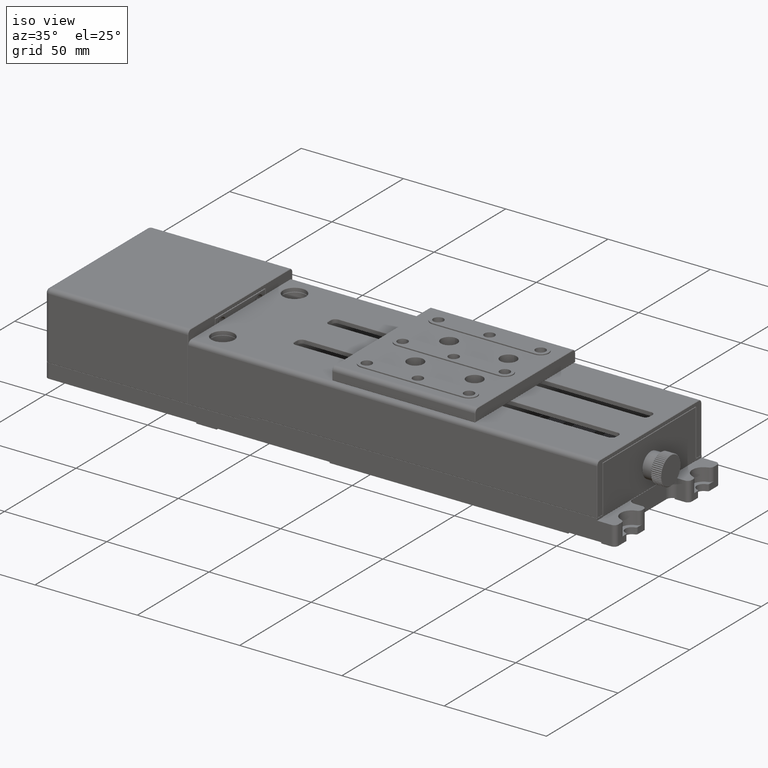
[diagram: clean part render]
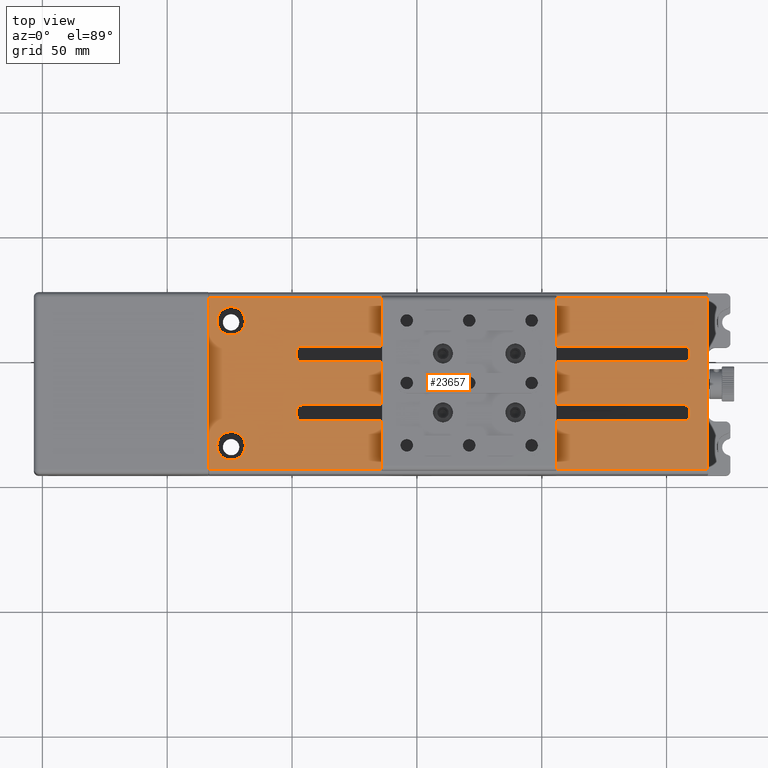
[diagram: tour spotlight — one face highlighted and labeled with its STEP entity id]
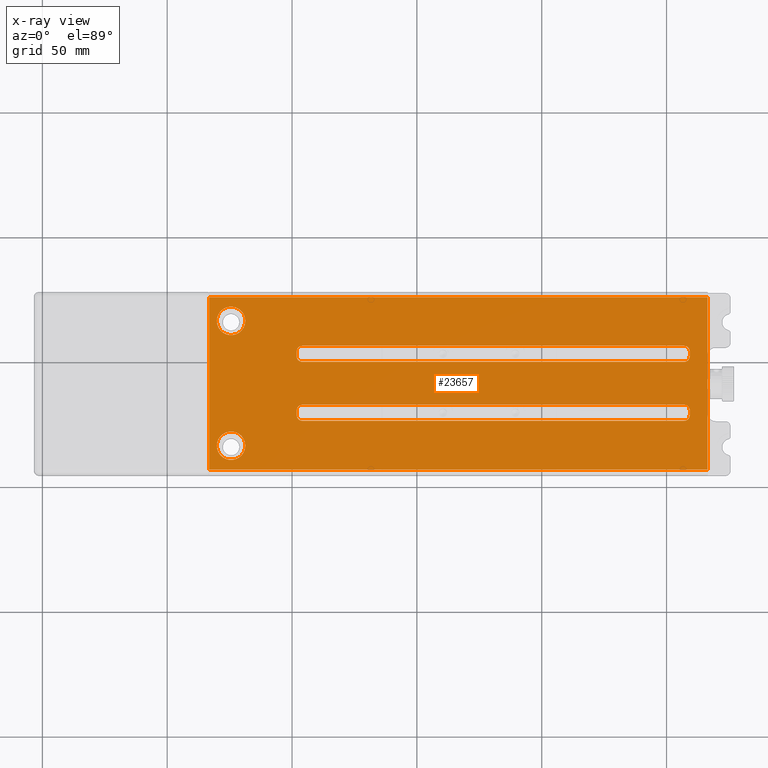
[diagram: x-ray of the same camera — body ghosted, this tour face saturated]
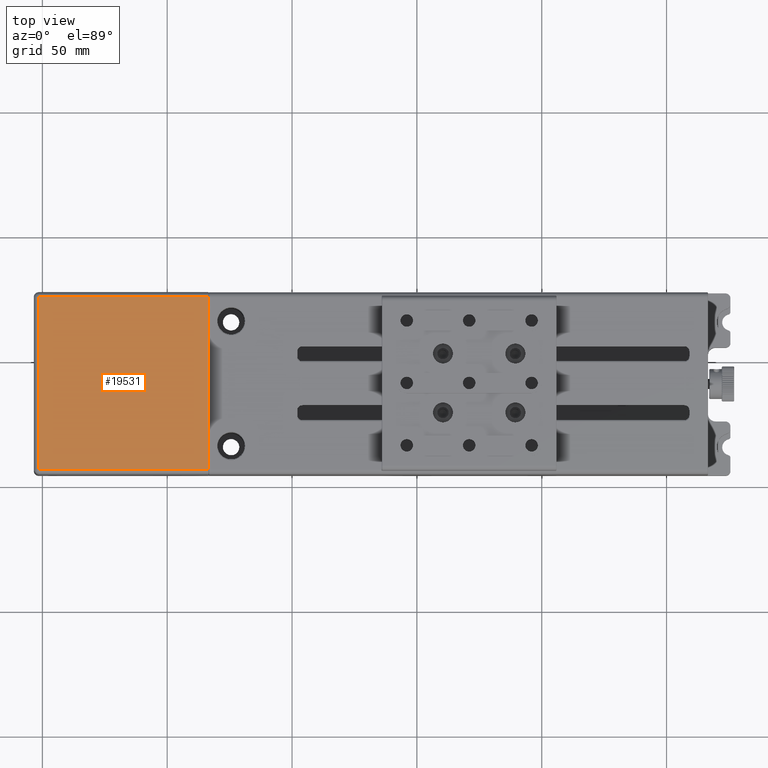
[diagram: tour spotlight — one face highlighted and labeled with its STEP entity id]
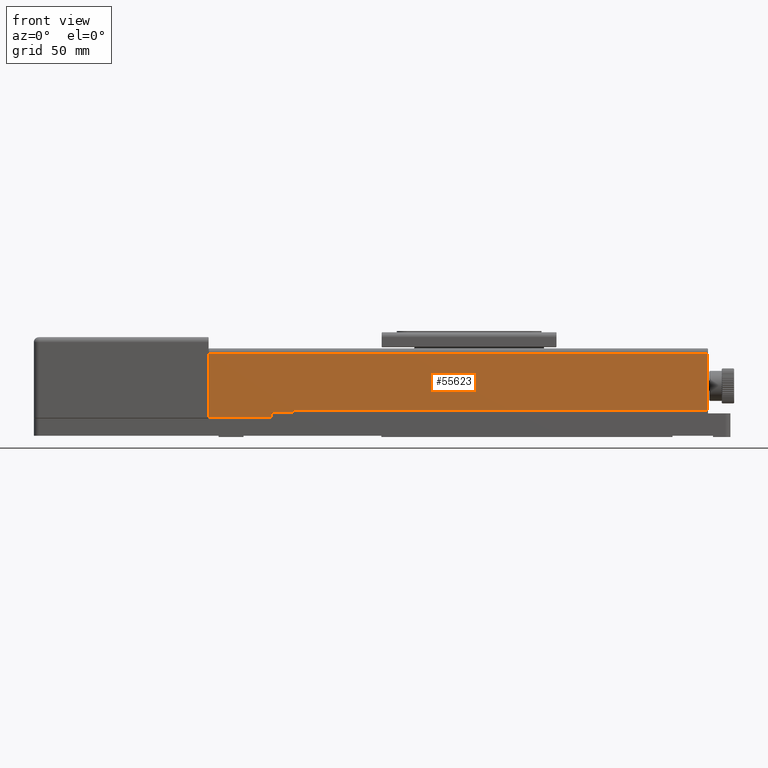
[diagram: tour spotlight — one face highlighted and labeled with its STEP entity id]
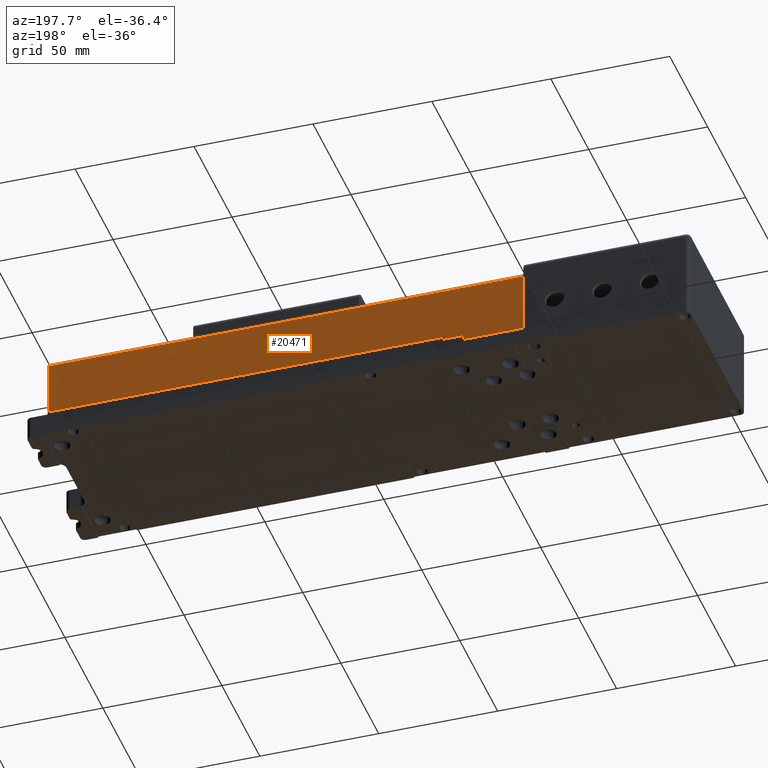
[diagram: tour spotlight — one face highlighted and labeled with its STEP entity id]
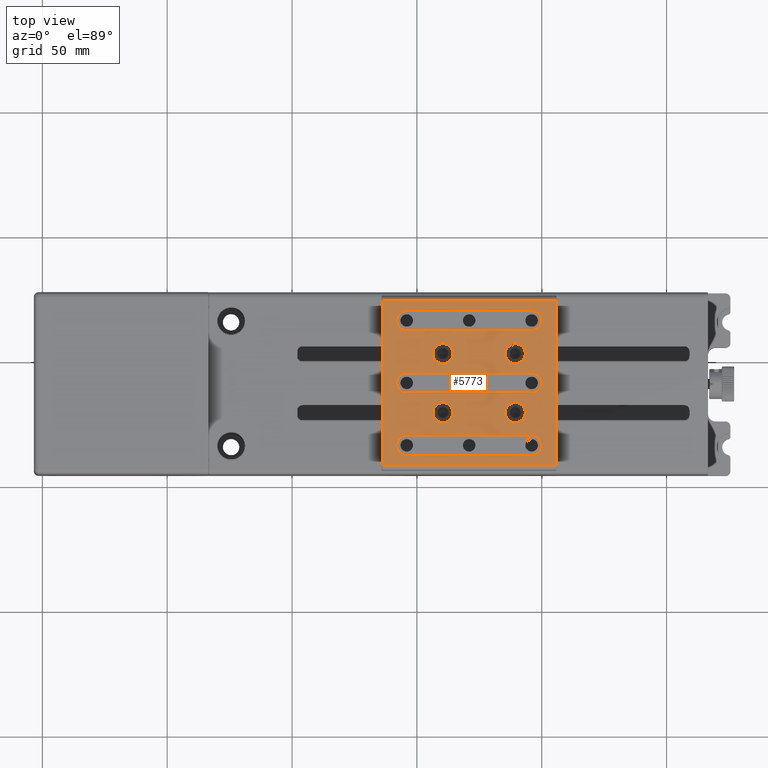
[diagram: tour spotlight — one face highlighted and labeled with its STEP entity id]
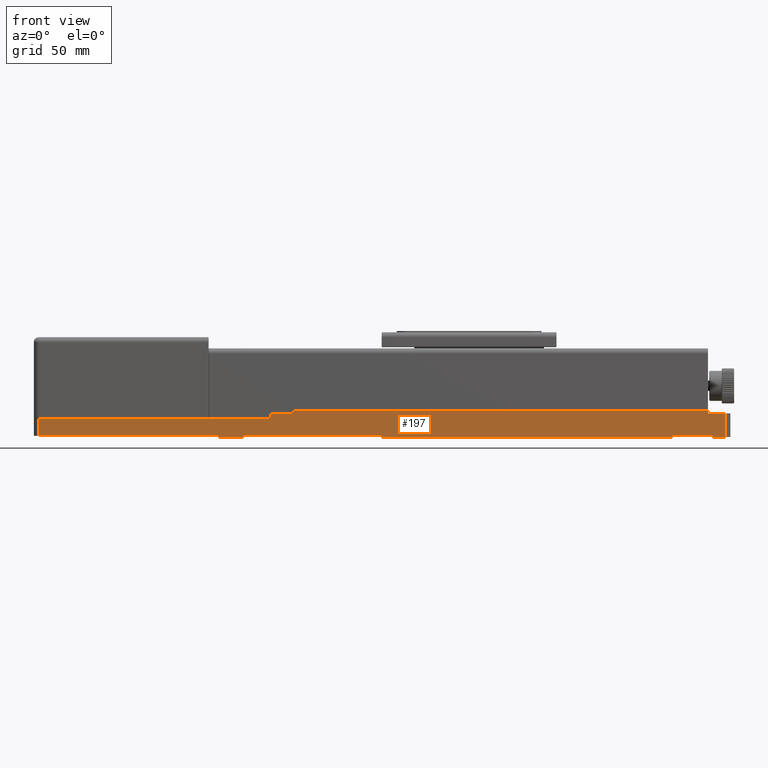
[diagram: tour spotlight — one face highlighted and labeled with its STEP entity id]
A machine part: a face-by-face anatomy tour. The part has 2403 B-rep faces; the first image is the clean iso view, then the 6 largest visible faces are spotlighted one at a time (largest first), each with its STEP entity span.

Face 1 — top view, entity #23657. An x-ray twin of the same camera follows (body ghosted, this face saturated) — the face is partly hidden behind the body. In plain terms, the highlighted planar face has unit normal (0, 0, -1).
Definition (entity closure, byte-faithful):
#261 = AXIS2_PLACEMENT_3D ( 'NONE', #5890, #10947, #48222 ) ;
#479 = DIRECTION ( 'NONE',  ( -1.000000000000000000, 1.336510520090155810E-16, 0.000000000000000000 ) ) ;
#1065 = ORIENTED_EDGE ( 'NONE', *, *, #21610, .T. ) ;
#1177 = LINE ( 'NONE', #49890, #12734 ) ;
#1223 = EDGE_CURVE ( 'NONE', #45035, #10469, #20036, .T. ) ;
#1522 = VERTEX_POINT ( 'NONE', #38744 ) ;
#1617 = EDGE_CURVE ( 'NONE', #58082, #10536, #22854, .T. ) ;
#1972 = EDGE_CURVE ( 'NONE', #62450, #9197, #19776, .T. ) ;
#2056 = DIRECTION ( 'NONE',  ( 0.000000000000000000, 0.000000000000000000, -1.000000000000000000 ) ) ;
#3222 = DIRECTION ( 'NONE',  ( -1.000000000000000000, 2.220446049250315053E-16, 0.000000000000000000 ) ) ;
#3426 = CARTESIAN_POINT ( 'NONE',  ( 116.5747400185975948, -17.56919745025280122, 30.00000000000000000 ) ) ;
#3897 = VECTOR ( 'NONE', #32685, 1000.000000000000000 ) ;
#4320 = ORIENTED_EDGE ( 'NONE', *, *, #31526, .T. ) ;
#4815 = FACE_BOUND ( 'NONE', #38756, .T. ) ;
#5451 = EDGE_LOOP ( 'NONE', ( #41701, #1065 ) ) ;
#5701 = CARTESIAN_POINT ( 'NONE',  ( -68.72525998140230286, 16.03080254974724994, 30.00000000000000000 ) ) ;
#5890 = CARTESIAN_POINT ( 'NONE',  ( 107.0747400185975948, -19.76919745025280406, 30.00000000000000000 ) ) ;
#6429 = EDGE_CURVE ( 'NONE', #10469, #35495, #65957, .T. ) ;
#6804 = DIRECTION ( 'NONE',  ( 0.000000000000000000, 0.000000000000000000, -1.000000000000000000 ) ) ;
#6882 = ORIENTED_EDGE ( 'NONE', *, *, #1972, .T. ) ;
#8625 = CARTESIAN_POINT ( 'NONE',  ( -48.12525998140230143, 3.830802549747224894, 30.00000000000000000 ) ) ;
#8826 = DIRECTION ( 'NONE',  ( -1.000000000000000000, 0.000000000000000000, 0.000000000000000000 ) ) ;
#9197 = VERTEX_POINT ( 'NONE', #24548 ) ;
#9324 = CARTESIAN_POINT ( 'NONE',  ( -45.92525998140230570, -17.56919745025280122, 30.00000000000000000 ) ) ;
#9410 = ORIENTED_EDGE ( 'NONE', *, *, #44065, .T. ) ;
#9584 = ORIENTED_EDGE ( 'NONE', *, *, #6429, .T. ) ;
#9819 = VERTEX_POINT ( 'NONE', #55075 ) ;
#10469 = VERTEX_POINT ( 'NONE', #48338 ) ;
#10536 = VERTEX_POINT ( 'NONE', #65625 ) ;
#10584 = FACE_BOUND ( 'NONE', #27623, .T. ) ;
#10659 = LINE ( 'NONE', #16423, #3897 ) ;
#10854 = DIRECTION ( 'NONE',  ( 1.000000000000000000, -1.115526637800115937E-16, 0.000000000000000000 ) ) ;
#10927 = FACE_OUTER_BOUND ( 'NONE', #50714, .T. ) ;
#10947 = DIRECTION ( 'NONE',  ( 0.000000000000000000, 0.000000000000000000, -1.000000000000000000 ) ) ;
#11191 = CARTESIAN_POINT ( 'NONE',  ( -74.42525998140230570, -33.96919745025275006, 30.00000000000000000 ) ) ;
#11651 = DIRECTION ( 'NONE',  ( -1.000000000000000000, 0.000000000000000000, 0.000000000000000000 ) ) ;
#11709 = DIRECTION ( 'NONE',  ( 1.000000000000000000, -2.220446049250315053E-16, 0.000000000000000000 ) ) ;
#11851 = AXIS2_PLACEMENT_3D ( 'NONE', #35344, #17670, #50499 ) ;
#12225 = CARTESIAN_POINT ( 'NONE',  ( 109.2747400185975977, 1.830802549747200025, 30.00000000000000000 ) ) ;
#12407 = EDGE_CURVE ( 'NONE', #39453, #49155, #70198, .T. ) ;
#12734 = VECTOR ( 'NONE', #479, 1000.000000000000000 ) ;
#13866 = DIRECTION ( 'NONE',  ( 0.000000000000000000, 0.000000000000000000, -1.000000000000000000 ) ) ;
#14280 = CARTESIAN_POINT ( 'NONE',  ( -45.92525998140230570, 6.030802549747199315, 30.00000000000000000 ) ) ;
#14770 = CIRCLE ( 'NONE', #51650, 2.199999999999993516 ) ;
#15002 = CARTESIAN_POINT ( 'NONE',  ( -68.72525998140230286, -33.96919745025275006, 30.00000000000000000 ) ) ;
#15075 = DIRECTION ( 'NONE',  ( -1.000000000000000000, 0.000000000000000000, 0.000000000000000000 ) ) ;
#15710 = VERTEX_POINT ( 'NONE', #35552 ) ;
#15726 = EDGE_CURVE ( 'NONE', #15710, #45035, #58542, .T. ) ;
#15737 = DIRECTION ( 'NONE',  ( -2.555825921272494964E-16, -1.000000000000000000, 0.000000000000000000 ) ) ;
#16423 = CARTESIAN_POINT ( 'NONE',  ( -83.22525998140230286, 27.53080254974724994, 30.00000000000000000 ) ) ;
#17232 = EDGE_CURVE ( 'NONE', #48708, #1522, #67584, .T. ) ;
#17301 = DIRECTION ( 'NONE',  ( -1.000000000000000000, 0.000000000000000000, 0.000000000000000000 ) ) ;
#17542 = VERTEX_POINT ( 'NONE', #51258 ) ;
#17670 = DIRECTION ( 'NONE',  ( 0.000000000000000000, 0.000000000000000000, -1.000000000000000000 ) ) ;
#17771 = CARTESIAN_POINT ( 'NONE',  ( -74.42525998140230570, -33.96919745025275006, 30.00000000000000000 ) ) ;
#18167 = CARTESIAN_POINT ( 'NONE',  ( 116.5747400185975948, -23.96919745025279624, 30.00000000000000000 ) ) ;
#18300 = EDGE_CURVE ( 'NONE', #1522, #38104, #58228, .T. ) ;
#18301 = VECTOR ( 'NONE', #42135, 1000.000000000000000 ) ;
#18342 = VECTOR ( 'NONE', #66548, 1000.000000000000000 ) ;
#18964 = ORIENTED_EDGE ( 'NONE', *, *, #36415, .T. ) ;
#18968 = DIRECTION ( 'NONE',  ( -1.000000000000000000, 1.971276677246371026E-16, 0.000000000000000000 ) ) ;
#19689 = CIRCLE ( 'NONE', #58880, 2.200000000000000622 ) ;
#19776 = LINE ( 'NONE', #42497, #18301 ) ;
#20036 = LINE ( 'NONE', #3426, #25122 ) ;
#20712 = DIRECTION ( 'NONE',  ( 0.000000000000000000, -1.000000000000000000, 0.000000000000000000 ) ) ;
#21610 = EDGE_CURVE ( 'NONE', #68093, #22283, #55037, .T. ) ;
#21623 = AXIS2_PLACEMENT_3D ( 'NONE', #11191, #38963, #17301 ) ;
#21923 = ORIENTED_EDGE ( 'NONE', *, *, #45706, .T. ) ;
#22283 = VERTEX_POINT ( 'NONE', #15002 ) ;
#22854 = CIRCLE ( 'NONE', #63154, 2.199999999999993516 ) ;
#23362 = DIRECTION ( 'NONE',  ( -1.000000000000000000, 1.971276677246371026E-16, 0.000000000000000000 ) ) ;
#23437 = VECTOR ( 'NONE', #3222, 1000.000000000000000 ) ;
#23657 = ADVANCED_FACE ( 'NONE', ( #43423, #54949, #4815, #10584, #10927 ), #32968, .F. ) ;
#24035 = DIRECTION ( 'NONE',  ( 0.000000000000000000, 0.000000000000000000, -1.000000000000000000 ) ) ;
#24548 = CARTESIAN_POINT ( 'NONE',  ( 116.3747400185976062, 25.53080254974720020, 30.00000000000000000 ) ) ;
#24725 = CARTESIAN_POINT ( 'NONE',  ( -74.42525998140230570, 16.03080254974724994, 30.00000000000000000 ) ) ;
#25122 = VECTOR ( 'NONE', #57900, 1000.000000000000000 ) ;
#25296 = EDGE_CURVE ( 'NONE', #9197, #45546, #63818, .T. ) ;
#25408 = LINE ( 'NONE', #69403, #48768 ) ;
#26500 = CARTESIAN_POINT ( 'NONE',  ( 107.0747400185975948, -0.3691974502527745061, 30.00000000000000000 ) ) ;
#26516 = CIRCLE ( 'NONE', #28810, 2.200000000000000622 ) ;
#26604 = CARTESIAN_POINT ( 'NONE',  ( 109.2747400185975977, 27.53080254974720020, 30.00000000000000000 ) ) ;
#26890 = VECTOR ( 'NONE', #10854, 1000.000000000000000 ) ;
#27549 = CARTESIAN_POINT ( 'NONE',  ( 116.5747400185975948, 27.53080254974720020, 30.00000000000000000 ) ) ;
#27623 = EDGE_LOOP ( 'NONE', ( #32687, #57660, #49317, #9584, #65354, #9410, #39219, #39310 ) ) ;
#27713 = EDGE_CURVE ( 'NONE', #52021, #58082, #66045, .T. ) ;
#27822 = EDGE_CURVE ( 'NONE', #63409, #48108, #48761, .T. ) ;
#28810 = AXIS2_PLACEMENT_3D ( 'NONE', #56165, #2056, #23362 ) ;
#28870 = VECTOR ( 'NONE', #11709, 1000.000000000000000 ) ;
#29132 = EDGE_CURVE ( 'NONE', #22283, #68093, #70806, .T. ) ;
#29256 = CARTESIAN_POINT ( 'NONE',  ( 109.2747400185975977, -19.76919745025280406, 30.00000000000000000 ) ) ;
#29475 = AXIS2_PLACEMENT_3D ( 'NONE', #24725, #13866, #69806 ) ;
#29862 = EDGE_CURVE ( 'NONE', #35495, #17542, #44588, .T. ) ;
#30796 = CARTESIAN_POINT ( 'NONE',  ( -48.12525998140230143, -21.76919745025279695, 30.00000000000000000 ) ) ;
#31202 = ORIENTED_EDGE ( 'NONE', *, *, #38484, .T. ) ;
#31526 = EDGE_CURVE ( 'NONE', #48108, #63409, #51339, .T. ) ;
#32333 = LINE ( 'NONE', #70577, #18342 ) ;
#32685 = DIRECTION ( 'NONE',  ( -1.110223024625155924E-16, -1.000000000000000000, 0.000000000000000000 ) ) ;
#32687 = ORIENTED_EDGE ( 'NONE', *, *, #44323, .T. ) ;
#32968 = PLANE ( 'NONE',  #60261 ) ;
#34232 = ORIENTED_EDGE ( 'NONE', *, *, #43662, .T. ) ;
#34391 = ORIENTED_EDGE ( 'NONE', *, *, #38018, .T. ) ;
#34449 = ORIENTED_EDGE ( 'NONE', *, *, #52633, .T. ) ;
#34878 = DIRECTION ( 'NONE',  ( -1.000000000000000000, 0.000000000000000000, 0.000000000000000000 ) ) ;
#35012 = VERTEX_POINT ( 'NONE', #44872 ) ;
#35036 = VECTOR ( 'NONE', #15737, 1000.000000000000000 ) ;
#35344 = CARTESIAN_POINT ( 'NONE',  ( -74.42525998140230570, 16.03080254974724994, 30.00000000000000000 ) ) ;
#35495 = VERTEX_POINT ( 'NONE', #29256 ) ;
#35552 = CARTESIAN_POINT ( 'NONE',  ( -48.12525998140230143, -19.76919745025280406, 30.00000000000000000 ) ) ;
#36237 = AXIS2_PLACEMENT_3D ( 'NONE', #17771, #61072, #11651 ) ;
#36335 = ORIENTED_EDGE ( 'NONE', *, *, #45224, .T. ) ;
#36338 = AXIS2_PLACEMENT_3D ( 'NONE', #48995, #71006, #15075 ) ;
#36415 = EDGE_CURVE ( 'NONE', #35012, #39453, #19689, .T. ) ;
#36688 = AXIS2_PLACEMENT_3D ( 'NONE', #45429, #6804, #40003 ) ;
#37715 = CARTESIAN_POINT ( 'NONE',  ( -83.22525998140230286, 25.53080254974725349, 30.00000000000000000 ) ) ;
#38018 = EDGE_CURVE ( 'NONE', #10536, #51452, #25408, .T. ) ;
#38104 = VERTEX_POINT ( 'NONE', #30796 ) ;
#38484 = EDGE_CURVE ( 'NONE', #45546, #9819, #10659, .T. ) ;
#38744 = CARTESIAN_POINT ( 'NONE',  ( -45.92525998140230570, -23.96919745025279624, 30.00000000000000000 ) ) ;
#38756 = EDGE_LOOP ( 'NONE', ( #70563, #36335, #42227, #47787, #34391, #34232, #34449, #18964 ) ) ;
#38963 = DIRECTION ( 'NONE',  ( 0.000000000000000000, 0.000000000000000000, -1.000000000000000000 ) ) ;
#39136 = LINE ( 'NONE', #65855, #28870 ) ;
#39219 = ORIENTED_EDGE ( 'NONE', *, *, #17232, .T. ) ;
#39310 = ORIENTED_EDGE ( 'NONE', *, *, #18300, .T. ) ;
#39453 = VERTEX_POINT ( 'NONE', #53337 ) ;
#39568 = DIRECTION ( 'NONE',  ( 0.000000000000000000, 0.000000000000000000, -1.000000000000000000 ) ) ;
#40003 = DIRECTION ( 'NONE',  ( -1.000000000000000000, 1.971276677246377435E-16, 0.000000000000000000 ) ) ;
#40166 = DIRECTION ( 'NONE',  ( -1.000000000000000000, 8.945427555100779139E-17, 0.000000000000000000 ) ) ;
#40238 = CARTESIAN_POINT ( 'NONE',  ( 116.3747400185976062, -43.46919745025279980, 30.00000000000000000 ) ) ;
#41374 = VECTOR ( 'NONE', #71272, 1000.000000000000000 ) ;
#41701 = ORIENTED_EDGE ( 'NONE', *, *, #29132, .T. ) ;
#42135 = DIRECTION ( 'NONE',  ( 2.334869823772509994E-16, 1.000000000000000000, 0.000000000000000000 ) ) ;
#42227 = ORIENTED_EDGE ( 'NONE', *, *, #27713, .T. ) ;
#42497 = CARTESIAN_POINT ( 'NONE',  ( 116.3747400185976062, 27.53080254974720020, 30.00000000000000000 ) ) ;
#43423 = FACE_BOUND ( 'NONE', #5451, .T. ) ;
#43537 = CARTESIAN_POINT ( 'NONE',  ( 107.0747400185975948, 6.030802549747189545, 30.00000000000000000 ) ) ;
#43662 = EDGE_CURVE ( 'NONE', #51452, #48324, #71268, .T. ) ;
#44065 = EDGE_CURVE ( 'NONE', #17542, #48708, #14770, .T. ) ;
#44323 = EDGE_CURVE ( 'NONE', #38104, #15710, #32333, .T. ) ;
#44588 = LINE ( 'NONE', #26604, #35036 ) ;
#44872 = CARTESIAN_POINT ( 'NONE',  ( -45.92525998140230570, -0.3691974502527569646, 30.00000000000000000 ) ) ;
#45035 = VERTEX_POINT ( 'NONE', #9324 ) ;
#45224 = EDGE_CURVE ( 'NONE', #49155, #52021, #26516, .T. ) ;
#45429 = CARTESIAN_POINT ( 'NONE',  ( 107.0747400185975948, 1.830802549747205132, 30.00000000000000000 ) ) ;
#45546 = VERTEX_POINT ( 'NONE', #37715 ) ;
#45665 = ORIENTED_EDGE ( 'NONE', *, *, #25296, .T. ) ;
#45706 = EDGE_CURVE ( 'NONE', #9819, #62450, #39136, .T. ) ;
#47787 = ORIENTED_EDGE ( 'NONE', *, *, #1617, .T. ) ;
#48108 = VERTEX_POINT ( 'NONE', #5701 ) ;
#48222 = DIRECTION ( 'NONE',  ( -1.000000000000000000, 0.000000000000000000, 0.000000000000000000 ) ) ;
#48324 = VERTEX_POINT ( 'NONE', #26500 ) ;
#48338 = CARTESIAN_POINT ( 'NONE',  ( 107.0747400185975948, -17.56919745025280122, 30.00000000000000000 ) ) ;
#48708 = VERTEX_POINT ( 'NONE', #64265 ) ;
#48761 = CIRCLE ( 'NONE', #11851, 5.699999999999996625 ) ;
#48768 = VECTOR ( 'NONE', #64694, 1000.000000000000000 ) ;
#48839 = DIRECTION ( 'NONE',  ( 0.000000000000000000, 0.000000000000000000, -1.000000000000000000 ) ) ;
#48995 = CARTESIAN_POINT ( 'NONE',  ( -45.92525998140230570, -21.76919745025279695, 30.00000000000000000 ) ) ;
#49155 = VERTEX_POINT ( 'NONE', #8625 ) ;
#49317 = ORIENTED_EDGE ( 'NONE', *, *, #1223, .T. ) ;
#49890 = CARTESIAN_POINT ( 'NONE',  ( 116.5747400185975948, -0.3691974502527775037, 30.00000000000000000 ) ) ;
#50499 = DIRECTION ( 'NONE',  ( -1.000000000000000000, 0.000000000000000000, 0.000000000000000000 ) ) ;
#50714 = EDGE_LOOP ( 'NONE', ( #45665, #31202, #21923, #6882 ) ) ;
#51223 = EDGE_LOOP ( 'NONE', ( #4320, #52569 ) ) ;
#51258 = CARTESIAN_POINT ( 'NONE',  ( 109.2747400185975977, -21.76919745025279695, 30.00000000000000000 ) ) ;
#51339 = CIRCLE ( 'NONE', #29475, 5.699999999999996625 ) ;
#51419 = CARTESIAN_POINT ( 'NONE',  ( -45.92525998140230570, 1.830802549747225116, 30.00000000000000000 ) ) ;
#51442 = CARTESIAN_POINT ( 'NONE',  ( 107.0747400185975948, -21.76919745025279695, 30.00000000000000000 ) ) ;
#51452 = VERTEX_POINT ( 'NONE', #12225 ) ;
#51650 = AXIS2_PLACEMENT_3D ( 'NONE', #51442, #39568, #34878 ) ;
#51677 = DIRECTION ( 'NONE',  ( 0.000000000000000000, 0.000000000000000000, -1.000000000000000000 ) ) ;
#52021 = VERTEX_POINT ( 'NONE', #14280 ) ;
#52043 = CARTESIAN_POINT ( 'NONE',  ( 107.0747400185975948, 3.830802549747209795, 30.00000000000000000 ) ) ;
#52446 = CARTESIAN_POINT ( 'NONE',  ( -80.12525998140229433, -33.96919745025275006, 30.00000000000000000 ) ) ;
#52569 = ORIENTED_EDGE ( 'NONE', *, *, #27822, .T. ) ;
#52633 = EDGE_CURVE ( 'NONE', #48324, #35012, #1177, .T. ) ;
#53337 = CARTESIAN_POINT ( 'NONE',  ( -48.12525998140230143, 1.830802549747225116, 30.00000000000000000 ) ) ;
#54949 = FACE_BOUND ( 'NONE', #51223, .T. ) ;
#55037 = CIRCLE ( 'NONE', #21623, 5.699999999999996625 ) ;
#55075 = CARTESIAN_POINT ( 'NONE',  ( -83.22525998140230286, -43.46919745025275006, 30.00000000000000000 ) ) ;
#56165 = CARTESIAN_POINT ( 'NONE',  ( -45.92525998140230570, 3.830802549747220009, 30.00000000000000000 ) ) ;
#57545 = DIRECTION ( 'NONE',  ( 0.000000000000000000, 0.000000000000000000, -1.000000000000000000 ) ) ;
#57660 = ORIENTED_EDGE ( 'NONE', *, *, #15726, .T. ) ;
#57824 = DIRECTION ( 'NONE',  ( -1.000000000000000000, 1.971276677246377435E-16, 0.000000000000000000 ) ) ;
#57900 = DIRECTION ( 'NONE',  ( 1.000000000000000000, -8.945427555100779139E-17, 0.000000000000000000 ) ) ;
#58082 = VERTEX_POINT ( 'NONE', #43537 ) ;
#58228 = CIRCLE ( 'NONE', #36338, 2.200000000000000622 ) ;
#58542 = CIRCLE ( 'NONE', #66615, 2.200000000000000622 ) ;
#58880 = AXIS2_PLACEMENT_3D ( 'NONE', #51419, #24035, #18968 ) ;
#59265 = VECTOR ( 'NONE', #40166, 1000.000000000000000 ) ;
#59364 = CARTESIAN_POINT ( 'NONE',  ( -48.12525998140230143, 27.53080254974724994, 30.00000000000000000 ) ) ;
#59794 = CARTESIAN_POINT ( 'NONE',  ( -80.12525998140229433, 16.03080254974724994, 30.00000000000000000 ) ) ;
#60261 = AXIS2_PLACEMENT_3D ( 'NONE', #27549, #48839, #20712 ) ;
#61072 = DIRECTION ( 'NONE',  ( 0.000000000000000000, 0.000000000000000000, -1.000000000000000000 ) ) ;
#62450 = VERTEX_POINT ( 'NONE', #40238 ) ;
#63154 = AXIS2_PLACEMENT_3D ( 'NONE', #52043, #51677, #57824 ) ;
#63409 = VERTEX_POINT ( 'NONE', #59794 ) ;
#63460 = CARTESIAN_POINT ( 'NONE',  ( 116.5747400185975948, 25.53080254974720020, 30.00000000000000000 ) ) ;
#63818 = LINE ( 'NONE', #63460, #23437 ) ;
#64265 = CARTESIAN_POINT ( 'NONE',  ( 107.0747400185975948, -23.96919745025279624, 30.00000000000000000 ) ) ;
#64694 = DIRECTION ( 'NONE',  ( 3.353798720221824995E-17, -1.000000000000000000, 0.000000000000000000 ) ) ;
#65354 = ORIENTED_EDGE ( 'NONE', *, *, #29862, .T. ) ;
#65625 = CARTESIAN_POINT ( 'NONE',  ( 109.2747400185975977, 3.830802549747204910, 30.00000000000000000 ) ) ;
#65855 = CARTESIAN_POINT ( 'NONE',  ( 116.5747400185975948, -43.46919745025279980, 30.00000000000000000 ) ) ;
#65957 = CIRCLE ( 'NONE', #261, 2.199999999999993516 ) ;
#66045 = LINE ( 'NONE', #69783, #26890 ) ;
#66548 = DIRECTION ( 'NONE',  ( 1.110223024625155924E-16, 1.000000000000000000, 0.000000000000000000 ) ) ;
#66615 = AXIS2_PLACEMENT_3D ( 'NONE', #69816, #57545, #8826 ) ;
#67584 = LINE ( 'NONE', #18167, #59265 ) ;
#68093 = VERTEX_POINT ( 'NONE', #52446 ) ;
#69403 = CARTESIAN_POINT ( 'NONE',  ( 109.2747400185975977, 27.53080254974720020, 30.00000000000000000 ) ) ;
#69783 = CARTESIAN_POINT ( 'NONE',  ( 116.5747400185975948, 6.030802549747178887, 30.00000000000000000 ) ) ;
#69806 = DIRECTION ( 'NONE',  ( -1.000000000000000000, 0.000000000000000000, 0.000000000000000000 ) ) ;
#69816 = CARTESIAN_POINT ( 'NONE',  ( -45.92525998140230570, -19.76919745025280406, 30.00000000000000000 ) ) ;
#70198 = LINE ( 'NONE', #59364, #41374 ) ;
#70563 = ORIENTED_EDGE ( 'NONE', *, *, #12407, .T. ) ;
#70577 = CARTESIAN_POINT ( 'NONE',  ( -48.12525998140230143, 27.53080254974724994, 30.00000000000000000 ) ) ;
#70806 = CIRCLE ( 'NONE', #36237, 5.699999999999996625 ) ;
#71006 = DIRECTION ( 'NONE',  ( 0.000000000000000000, 0.000000000000000000, -1.000000000000000000 ) ) ;
#71268 = CIRCLE ( 'NONE', #36688, 2.199999999999993516 ) ;
#71272 = DIRECTION ( 'NONE',  ( 1.110223024625155924E-16, 1.000000000000000000, 0.000000000000000000 ) ) ;

Face 2 — top view, entity #19531. In plain terms, the highlighted planar face has unit normal (0, 0, -1).
Definition (entity closure, byte-faithful):
#656 = AXIS2_PLACEMENT_3D ( 'NONE', #10392, #32427, #21600 ) ;
#900 = VECTOR ( 'NONE', #26001, 1000.000000000000000 ) ;
#3569 = EDGE_CURVE ( 'NONE', #16419, #51106, #33205, .T. ) ;
#6168 = CARTESIAN_POINT ( 'NONE',  ( -83.62525998140229433, -43.46919745025279980, 34.50000000000000000 ) ) ;
#7452 = ORIENTED_EDGE ( 'NONE', *, *, #3569, .T. ) ;
#7973 = CARTESIAN_POINT ( 'NONE',  ( -83.62525998140229433, 25.53080254974720020, 34.50000000000000000 ) ) ;
#10392 = CARTESIAN_POINT ( 'NONE',  ( -83.42525998140230570, -45.46919745025279980, 34.50000000000000000 ) ) ;
#13226 = VECTOR ( 'NONE', #15876, 1000.000000000000000 ) ;
#13550 = VERTEX_POINT ( 'NONE', #52515 ) ;
#15757 = ORIENTED_EDGE ( 'NONE', *, *, #34125, .T. ) ;
#15876 = DIRECTION ( 'NONE',  ( -2.775557561562890365E-16, -1.000000000000000000, 0.000000000000000000 ) ) ;
#16419 = VERTEX_POINT ( 'NONE', #6168 ) ;
#16579 = CARTESIAN_POINT ( 'NONE',  ( -83.62525998140229433, -45.46919745025279980, 34.50000000000000000 ) ) ;
#19044 = EDGE_CURVE ( 'NONE', #13550, #71403, #21333, .T. ) ;
#19531 = ADVANCED_FACE ( 'NONE', ( #21243 ), #59822, .F. ) ;
#21243 = FACE_OUTER_BOUND ( 'NONE', #33651, .T. ) ;
#21333 = LINE ( 'NONE', #65310, #13226 ) ;
#21600 = DIRECTION ( 'NONE',  ( 0.000000000000000000, -1.000000000000000000, 0.000000000000000000 ) ) ;
#26001 = DIRECTION ( 'NONE',  ( 1.000000000000000000, -3.445092848397665055E-16, 0.000000000000000000 ) ) ;
#29909 = ORIENTED_EDGE ( 'NONE', *, *, #19044, .T. ) ;
#30686 = LINE ( 'NONE', #63859, #900 ) ;
#32427 = DIRECTION ( 'NONE',  ( 0.000000000000000000, 0.000000000000000000, -1.000000000000000000 ) ) ;
#33205 = LINE ( 'NONE', #16579, #70474 ) ;
#33490 = EDGE_CURVE ( 'NONE', #71403, #16419, #30686, .T. ) ;
#33651 = EDGE_LOOP ( 'NONE', ( #69990, #7452, #15757, #29909 ) ) ;
#34125 = EDGE_CURVE ( 'NONE', #51106, #13550, #63963, .T. ) ;
#38589 = DIRECTION ( 'NONE',  ( 2.775557561562890365E-16, 1.000000000000000000, 0.000000000000000000 ) ) ;
#44764 = VECTOR ( 'NONE', #57844, 1000.000000000000000 ) ;
#51106 = VERTEX_POINT ( 'NONE', #7973 ) ;
#52515 = CARTESIAN_POINT ( 'NONE',  ( -151.4252599814024904, 25.53080254974725349, 34.50000000000000000 ) ) ;
#57844 = DIRECTION ( 'NONE',  ( -1.000000000000000000, 2.220446049250315053E-16, 0.000000000000000000 ) ) ;
#59822 = PLANE ( 'NONE',  #656 ) ;
#63246 = CARTESIAN_POINT ( 'NONE',  ( -83.42525998140230570, 25.53080254974720020, 34.50000000000000000 ) ) ;
#63859 = CARTESIAN_POINT ( 'NONE',  ( -83.42525998140230570, -43.46919745025279980, 34.50000000000000000 ) ) ;
#63963 = LINE ( 'NONE', #63246, #44764 ) ;
#64472 = CARTESIAN_POINT ( 'NONE',  ( -151.4252599814024904, -43.46919745025275006, 34.50000000000000000 ) ) ;
#65310 = CARTESIAN_POINT ( 'NONE',  ( -151.4252599814024904, -45.46919745025279980, 34.50000000000000000 ) ) ;
#69990 = ORIENTED_EDGE ( 'NONE', *, *, #33490, .T. ) ;
#70474 = VECTOR ( 'NONE', #38589, 1000.000000000000000 ) ;
#71403 = VERTEX_POINT ( 'NONE', #64472 ) ;

Face 3 — front view, entity #55623. In plain terms, the highlighted planar face has unit normal (0, 1, 0).
Definition (entity closure, byte-faithful):
#250 = EDGE_LOOP ( 'NONE', ( #22958, #36011, #12170, #68563, #11350, #70850, #41638, #59619 ) ) ;
#1479 = EDGE_CURVE ( 'NONE', #63510, #13425, #56037, .T. ) ;
#1549 = DIRECTION ( 'NONE',  ( -1.000000000000000000, 2.220446049250315053E-16, 0.000000000000000000 ) ) ;
#5312 = CARTESIAN_POINT ( 'NONE',  ( -58.42525998140229859, -45.46919745025279980, 4.200000000000000178 ) ) ;
#5625 = VECTOR ( 'NONE', #11364, 1000.000000000000000 ) ;
#8544 = EDGE_CURVE ( 'NONE', #26871, #48912, #16719, .T. ) ;
#9623 = FACE_OUTER_BOUND ( 'NONE', #250, .T. ) ;
#11350 = ORIENTED_EDGE ( 'NONE', *, *, #59802, .T. ) ;
#11364 = DIRECTION ( 'NONE',  ( 0.000000000000000000, 0.000000000000000000, -1.000000000000000000 ) ) ;
#11460 = LINE ( 'NONE', #54783, #64628 ) ;
#12170 = ORIENTED_EDGE ( 'NONE', *, *, #37324, .T. ) ;
#12983 = CARTESIAN_POINT ( 'NONE',  ( -83.22525998140230286, -45.46919745025279980, 2.200000000000000178 ) ) ;
#13425 = VERTEX_POINT ( 'NONE', #28056 ) ;
#14403 = VECTOR ( 'NONE', #52741, 1000.000000000000000 ) ;
#14610 = VECTOR ( 'NONE', #47267, 1000.000000000000000 ) ;
#16391 = DIRECTION ( 'NONE',  ( 1.000000000000000000, -2.220446049250315053E-16, 0.000000000000000000 ) ) ;
#16431 = CARTESIAN_POINT ( 'NONE',  ( -83.22525998140230286, -45.46919745025279980, 5.000000000000000000 ) ) ;
#16719 = LINE ( 'NONE', #66491, #31926 ) ;
#20155 = DIRECTION ( 'NONE',  ( 0.000000000000000000, 0.000000000000000000, 1.000000000000000000 ) ) ;
#21021 = CARTESIAN_POINT ( 'NONE',  ( -49.42525998140229859, -45.46919745025279980, 2.000000000000000000 ) ) ;
#21618 = CARTESIAN_POINT ( 'NONE',  ( 116.3747400185976062, -45.46919745025279980, 5.000000000000000000 ) ) ;
#22318 = VECTOR ( 'NONE', #27039, 1000.000000000000000 ) ;
#22888 = CARTESIAN_POINT ( 'NONE',  ( -49.42525998140229859, -45.46919745025279980, 5.200000000000000178 ) ) ;
#22958 = ORIENTED_EDGE ( 'NONE', *, *, #44267, .T. ) ;
#25516 = EDGE_CURVE ( 'NONE', #42860, #26871, #54068, .T. ) ;
#25750 = CARTESIAN_POINT ( 'NONE',  ( -58.42525998140229859, -45.46919745025279980, 2.200000000000000178 ) ) ;
#26436 = LINE ( 'NONE', #21021, #14403 ) ;
#26871 = VERTEX_POINT ( 'NONE', #42900 ) ;
#27039 = DIRECTION ( 'NONE',  ( 0.000000000000000000, 0.000000000000000000, 1.000000000000000000 ) ) ;
#28056 = CARTESIAN_POINT ( 'NONE',  ( -49.42525998140229859, -45.46919745025279980, 4.200000000000000178 ) ) ;
#29928 = VECTOR ( 'NONE', #16391, 1000.000000000000000 ) ;
#31926 = VECTOR ( 'NONE', #1549, 1000.000000000000000 ) ;
#32030 = CARTESIAN_POINT ( 'NONE',  ( 116.3747400185976062, -45.46919745025279980, 5.200000000000000178 ) ) ;
#32693 = LINE ( 'NONE', #16431, #5625 ) ;
#36011 = ORIENTED_EDGE ( 'NONE', *, *, #61673, .T. ) ;
#36803 = VERTEX_POINT ( 'NONE', #22888 ) ;
#37324 = EDGE_CURVE ( 'NONE', #43080, #63510, #47561, .T. ) ;
#37407 = DIRECTION ( 'NONE',  ( 1.110223024625155924E-16, 1.000000000000000000, 0.000000000000000000 ) ) ;
#41392 = DIRECTION ( 'NONE',  ( 1.000000000000000000, -1.110223024625155924E-16, 0.000000000000000000 ) ) ;
#41638 = ORIENTED_EDGE ( 'NONE', *, *, #25516, .T. ) ;
#42844 = PLANE ( 'NONE',  #53333 ) ;
#42860 = VERTEX_POINT ( 'NONE', #32030 ) ;
#42900 = CARTESIAN_POINT ( 'NONE',  ( 116.3747400185976062, -45.46919745025279980, 28.00000000000000000 ) ) ;
#43080 = VERTEX_POINT ( 'NONE', #25750 ) ;
#44267 = EDGE_CURVE ( 'NONE', #48912, #56214, #32693, .T. ) ;
#47267 = DIRECTION ( 'NONE',  ( 1.000000000000000000, -2.220446049250315053E-16, 0.000000000000000000 ) ) ;
#47561 = LINE ( 'NONE', #48275, #68015 ) ;
#48275 = CARTESIAN_POINT ( 'NONE',  ( -58.42525998140229859, -45.46919745025279980, 5.000000000000000000 ) ) ;
#48912 = VERTEX_POINT ( 'NONE', #67098 ) ;
#52653 = LINE ( 'NONE', #62418, #14610 ) ;
#52741 = DIRECTION ( 'NONE',  ( 0.000000000000000000, 0.000000000000000000, 1.000000000000000000 ) ) ;
#53006 = EDGE_CURVE ( 'NONE', #36803, #42860, #11460, .T. ) ;
#53333 = AXIS2_PLACEMENT_3D ( 'NONE', #64825, #37407, #41392 ) ;
#54068 = LINE ( 'NONE', #21618, #22318 ) ;
#54783 = CARTESIAN_POINT ( 'NONE',  ( 116.5747400185975948, -45.46919745025279980, 5.200000000000000178 ) ) ;
#55623 = ADVANCED_FACE ( 'NONE', ( #9623 ), #42844, .F. ) ;
#56037 = LINE ( 'NONE', #65817, #29928 ) ;
#56214 = VERTEX_POINT ( 'NONE', #12983 ) ;
#59619 = ORIENTED_EDGE ( 'NONE', *, *, #8544, .T. ) ;
#59802 = EDGE_CURVE ( 'NONE', #13425, #36803, #26436, .T. ) ;
#61673 = EDGE_CURVE ( 'NONE', #56214, #43080, #52653, .T. ) ;
#62418 = CARTESIAN_POINT ( 'NONE',  ( -58.42525998140229859, -45.46919745025279980, 2.200000000000000178 ) ) ;
#63510 = VERTEX_POINT ( 'NONE', #5312 ) ;
#64628 = VECTOR ( 'NONE', #70674, 1000.000000000000000 ) ;
#64825 = CARTESIAN_POINT ( 'NONE',  ( 116.5747400185975948, -45.46919745025279980, 5.000000000000000000 ) ) ;
#65817 = CARTESIAN_POINT ( 'NONE',  ( -49.42525998140229859, -45.46919745025279980, 4.200000000000000178 ) ) ;
#66491 = CARTESIAN_POINT ( 'NONE',  ( 116.5747400185975948, -45.46919745025279980, 28.00000000000000000 ) ) ;
#67098 = CARTESIAN_POINT ( 'NONE',  ( -83.22525998140230286, -45.46919745025279980, 28.00000000000000000 ) ) ;
#68015 = VECTOR ( 'NONE', #20155, 1000.000000000000000 ) ;
#68563 = ORIENTED_EDGE ( 'NONE', *, *, #1479, .T. ) ;
#70674 = DIRECTION ( 'NONE',  ( 1.000000000000000000, -2.220446049250315053E-16, 0.000000000000000000 ) ) ;
#70850 = ORIENTED_EDGE ( 'NONE', *, *, #53006, .T. ) ;

Face 4 — auxiliary view, entity #20471. In plain terms, the highlighted planar face has unit normal (-0, -1, 0).
Definition (entity closure, byte-faithful):
#1475 = EDGE_CURVE ( 'NONE', #52733, #48779, #33009, .T. ) ;
#7230 = CARTESIAN_POINT ( 'NONE',  ( -49.42525998140229859, 27.53080254974724994, 5.200000000000000178 ) ) ;
#7453 = EDGE_CURVE ( 'NONE', #52733, #28177, #69158, .T. ) ;
#7786 = DIRECTION ( 'NONE',  ( -1.110223024625155924E-16, -1.000000000000000000, 0.000000000000000000 ) ) ;
#8689 = CARTESIAN_POINT ( 'NONE',  ( 116.3747400185976062, 27.53080254974720020, 5.200000000000000178 ) ) ;
#9555 = ORIENTED_EDGE ( 'NONE', *, *, #11899, .T. ) ;
#11632 = CARTESIAN_POINT ( 'NONE',  ( -49.42525998140229859, 27.53080254974724994, 4.200000000000000178 ) ) ;
#11833 = CARTESIAN_POINT ( 'NONE',  ( -83.22525998140230286, 27.53080254974724994, 5.000000000000000000 ) ) ;
#11899 = EDGE_CURVE ( 'NONE', #68734, #27121, #63055, .T. ) ;
#13835 = CARTESIAN_POINT ( 'NONE',  ( -58.42525998140229859, 27.53080254974724994, 5.000000000000000000 ) ) ;
#14268 = PLANE ( 'NONE',  #24907 ) ;
#16553 = DIRECTION ( 'NONE',  ( 0.000000000000000000, 0.000000000000000000, 1.000000000000000000 ) ) ;
#19416 = CARTESIAN_POINT ( 'NONE',  ( -83.42525998140230570, 27.53080254974724994, 2.200000000000000178 ) ) ;
#20471 = ADVANCED_FACE ( 'NONE', ( #69124 ), #14268, .F. ) ;
#21310 = VERTEX_POINT ( 'NONE', #8689 ) ;
#23120 = VECTOR ( 'NONE', #53173, 1000.000000000000000 ) ;
#24907 = AXIS2_PLACEMENT_3D ( 'NONE', #57577, #7786, #41341 ) ;
#25312 = CARTESIAN_POINT ( 'NONE',  ( 116.3747400185976062, 27.53080254974720020, 5.000000000000000000 ) ) ;
#26734 = ORIENTED_EDGE ( 'NONE', *, *, #1475, .T. ) ;
#27121 = VERTEX_POINT ( 'NONE', #36675 ) ;
#28081 = CARTESIAN_POINT ( 'NONE',  ( -49.42525998140229859, 27.53080254974724994, 5.200000000000000178 ) ) ;
#28177 = VERTEX_POINT ( 'NONE', #28081 ) ;
#28510 = DIRECTION ( 'NONE',  ( 1.000000000000000000, -2.220446049250315053E-16, 0.000000000000000000 ) ) ;
#28811 = CARTESIAN_POINT ( 'NONE',  ( 116.3747400185976062, 27.53080254974720020, 28.00000000000000000 ) ) ;
#30312 = VECTOR ( 'NONE', #58086, 1000.000000000000000 ) ;
#30323 = LINE ( 'NONE', #7230, #30312 ) ;
#30702 = LINE ( 'NONE', #25312, #56183 ) ;
#31345 = ORIENTED_EDGE ( 'NONE', *, *, #68249, .T. ) ;
#31457 = CARTESIAN_POINT ( 'NONE',  ( -58.42525998140229859, 27.53080254974724994, 4.200000000000000178 ) ) ;
#33009 = LINE ( 'NONE', #45227, #58771 ) ;
#34388 = ORIENTED_EDGE ( 'NONE', *, *, #7453, .F. ) ;
#35155 = LINE ( 'NONE', #13835, #23120 ) ;
#35261 = VECTOR ( 'NONE', #53277, 1000.000000000000000 ) ;
#35654 = DIRECTION ( 'NONE',  ( -1.000000000000000000, 2.220446049250315053E-16, 0.000000000000000000 ) ) ;
#36675 = CARTESIAN_POINT ( 'NONE',  ( -83.22525998140230286, 27.53080254974724994, 2.200000000000000178 ) ) ;
#38843 = ORIENTED_EDGE ( 'NONE', *, *, #43416, .T. ) ;
#39266 = LINE ( 'NONE', #11833, #57568 ) ;
#41205 = EDGE_LOOP ( 'NONE', ( #59897, #9555, #69919, #31345, #38843, #52096, #34388, #26734 ) ) ;
#41341 = DIRECTION ( 'NONE',  ( -1.000000000000000000, 1.110223024625155924E-16, 0.000000000000000000 ) ) ;
#43416 = EDGE_CURVE ( 'NONE', #71254, #21310, #30702, .T. ) ;
#45227 = CARTESIAN_POINT ( 'NONE',  ( -58.42525998140229859, 27.53080254974724994, 4.200000000000000178 ) ) ;
#45284 = CARTESIAN_POINT ( 'NONE',  ( -58.42525998140229859, 27.53080254974724994, 2.200000000000000178 ) ) ;
#47383 = VECTOR ( 'NONE', #28510, 1000.000000000000000 ) ;
#48779 = VERTEX_POINT ( 'NONE', #31457 ) ;
#50678 = CARTESIAN_POINT ( 'NONE',  ( -83.22525998140230286, 27.53080254974724994, 28.00000000000000000 ) ) ;
#52096 = ORIENTED_EDGE ( 'NONE', *, *, #56212, .T. ) ;
#52372 = EDGE_CURVE ( 'NONE', #48779, #68734, #35155, .T. ) ;
#52684 = DIRECTION ( 'NONE',  ( 0.000000000000000000, 0.000000000000000000, -1.000000000000000000 ) ) ;
#52733 = VERTEX_POINT ( 'NONE', #11632 ) ;
#52909 = CARTESIAN_POINT ( 'NONE',  ( -49.42525998140229859, 27.53080254974724994, 2.000000000000000000 ) ) ;
#53173 = DIRECTION ( 'NONE',  ( 0.000000000000000000, 0.000000000000000000, -1.000000000000000000 ) ) ;
#53277 = DIRECTION ( 'NONE',  ( 0.000000000000000000, 0.000000000000000000, 1.000000000000000000 ) ) ;
#55191 = VECTOR ( 'NONE', #35654, 1000.000000000000000 ) ;
#55910 = CARTESIAN_POINT ( 'NONE',  ( 116.5747400185975948, 27.53080254974720020, 28.00000000000000000 ) ) ;
#56183 = VECTOR ( 'NONE', #52684, 1000.000000000000000 ) ;
#56212 = EDGE_CURVE ( 'NONE', #21310, #28177, #30323, .T. ) ;
#57568 = VECTOR ( 'NONE', #16553, 1000.000000000000000 ) ;
#57577 = CARTESIAN_POINT ( 'NONE',  ( 116.5747400185975948, 27.53080254974720020, 5.000000000000000000 ) ) ;
#58086 = DIRECTION ( 'NONE',  ( -1.000000000000000000, 2.220446049250315053E-16, 0.000000000000000000 ) ) ;
#58771 = VECTOR ( 'NONE', #67213, 1000.000000000000000 ) ;
#59897 = ORIENTED_EDGE ( 'NONE', *, *, #52372, .T. ) ;
#63055 = LINE ( 'NONE', #19416, #55191 ) ;
#66385 = LINE ( 'NONE', #55910, #47383 ) ;
#67213 = DIRECTION ( 'NONE',  ( -1.000000000000000000, 2.220446049250315053E-16, 0.000000000000000000 ) ) ;
#68249 = EDGE_CURVE ( 'NONE', #68780, #71254, #66385, .T. ) ;
#68734 = VERTEX_POINT ( 'NONE', #45284 ) ;
#68780 = VERTEX_POINT ( 'NONE', #50678 ) ;
#69124 = FACE_OUTER_BOUND ( 'NONE', #41205, .T. ) ;
#69158 = LINE ( 'NONE', #52909, #35261 ) ;
#69919 = ORIENTED_EDGE ( 'NONE', *, *, #71095, .T. ) ;
#71095 = EDGE_CURVE ( 'NONE', #27121, #68780, #39266, .T. ) ;
#71254 = VERTEX_POINT ( 'NONE', #28811 ) ;

Face 5 — top view, entity #5773. In plain terms, the highlighted planar face has unit normal (-0, -0, 1).
Definition (entity closure, byte-faithful):
#822 = CARTESIAN_POINT ( 'NONE',  ( 10.42131916724335916, -20.76919745025274722, 36.50000000000000000 ) ) ;
#1621 = ORIENTED_EDGE ( 'NONE', *, *, #39874, .F. ) ;
#1657 = DIRECTION ( 'NONE',  ( 1.000000000000000000, -2.299747693866395409E-16, 5.551115123125779621E-17 ) ) ;
#1832 = EDGE_CURVE ( 'NONE', #59144, #39841, #38969, .T. ) ;
#2460 = DIRECTION ( 'NONE',  ( 0.000000000000000000, -1.000000000000000000, 0.000000000000000000 ) ) ;
#2604 = ORIENTED_EDGE ( 'NONE', *, *, #49768, .F. ) ;
#3122 = DIRECTION ( 'NONE',  ( -5.551115123125779621E-17, 2.407412430484044816E-32, 1.000000000000000000 ) ) ;
#3389 = CARTESIAN_POINT ( 'NONE',  ( 45.92131916724340357, -29.96919745025275006, 36.50000000000000000 ) ) ;
#3406 = EDGE_CURVE ( 'NONE', #9501, #51646, #11680, .T. ) ;
#3505 = DIRECTION ( 'NONE',  ( 0.000000000000000000, -1.000000000000000000, 0.000000000000000000 ) ) ;
#3745 = CARTESIAN_POINT ( 'NONE',  ( 45.92131916724340357, 12.03080254974727836, 36.50000000000000000 ) ) ;
#3984 = CARTESIAN_POINT ( 'NONE',  ( 10.42131916724335916, 2.830802549747259533, 36.50000000000000000 ) ) ;
#4122 = DIRECTION ( 'NONE',  ( -4.336808689942017736E-16, -1.000000000000000000, 0.000000000000000000 ) ) ;
#4211 = CARTESIAN_POINT ( 'NONE',  ( 39.42131916724334673, -20.76919745025274722, 36.50000000000000000 ) ) ;
#4252 = VERTEX_POINT ( 'NONE', #31443 ) ;
#4277 = CARTESIAN_POINT ( 'NONE',  ( 39.42131916724334673, 6.830802549747239993, 36.50000000000000000 ) ) ;
#4432 = CARTESIAN_POINT ( 'NONE',  ( -4.078680832756649721, -33.96919745025275006, 36.50000000000000000 ) ) ;
#4806 = EDGE_CURVE ( 'NONE', #39841, #8729, #39506, .T. ) ;
#5149 = DIRECTION ( 'NONE',  ( -5.551115123125779621E-17, 2.407412430484050016E-32, 1.000000000000000000 ) ) ;
#5334 = VERTEX_POINT ( 'NONE', #40481 ) ;
#5472 = DIRECTION ( 'NONE',  ( 0.000000000000000000, -1.000000000000000000, 0.000000000000000000 ) ) ;
#5773 = ADVANCED_FACE ( 'NONE', ( #40025, #6833, #28876, #50858, #23460, #45459, #29218, #51206 ), #23811, .T. ) ;
#5792 = DIRECTION ( 'NONE',  ( -5.551115123125779621E-17, 2.407412430484044816E-32, 1.000000000000000000 ) ) ;
#5854 = VECTOR ( 'NONE', #55742, 1000.000000000000000 ) ;
#5857 = ORIENTED_EDGE ( 'NONE', *, *, #11131, .F. ) ;
#6091 = CARTESIAN_POINT ( 'NONE',  ( 39.42131916724334673, -1.169197450252760007, 36.50000000000000000 ) ) ;
#6179 = CARTESIAN_POINT ( 'NONE',  ( 45.92131916724340357, -37.96919745025275716, 36.50000000000000000 ) ) ;
#6479 = CARTESIAN_POINT ( 'NONE',  ( -4.078680832756649721, -29.96919745025275006, 36.50000000000000000 ) ) ;
#6526 = EDGE_CURVE ( 'NONE', #11752, #67251, #21013, .T. ) ;
#6833 = FACE_BOUND ( 'NONE', #37355, .T. ) ;
#7002 = DIRECTION ( 'NONE',  ( 0.000000000000000000, -1.000000000000000000, 0.000000000000000000 ) ) ;
#7053 = ORIENTED_EDGE ( 'NONE', *, *, #13837, .F. ) ;
#8729 = VERTEX_POINT ( 'NONE', #18127 ) ;
#8969 = CARTESIAN_POINT ( 'NONE',  ( 20.92131916724334673, -8.969197450252730519, 36.50000000000000000 ) ) ;
#9465 = EDGE_LOOP ( 'NONE', ( #37318, #55476 ) ) ;
#9501 = VERTEX_POINT ( 'NONE', #19030 ) ;
#9521 = EDGE_CURVE ( 'NONE', #69907, #18400, #46810, .T. ) ;
#11131 = EDGE_CURVE ( 'NONE', #66344, #68943, #51772, .T. ) ;
#11162 = DIRECTION ( 'NONE',  ( 1.000000000000000000, -1.110223024625158020E-16, 5.551115123125779621E-17 ) ) ;
#11680 = CIRCLE ( 'NONE', #49710, 4.000000000000000000 ) ;
#11752 = VERTEX_POINT ( 'NONE', #6091 ) ;
#12105 = AXIS2_PLACEMENT_3D ( 'NONE', #41355, #3122, #63721 ) ;
#12209 = EDGE_CURVE ( 'NONE', #39781, #69907, #33466, .T. ) ;
#12405 = DIRECTION ( 'NONE',  ( -5.551115123125779621E-17, 0.000000000000000000, 1.000000000000000000 ) ) ;
#12675 = DIRECTION ( 'NONE',  ( -5.551115123125779621E-17, 2.407412430484044816E-32, 1.000000000000000000 ) ) ;
#12692 = CARTESIAN_POINT ( 'NONE',  ( 39.42131916724334673, 2.830802549747239993, 36.50000000000000000 ) ) ;
#13837 = EDGE_CURVE ( 'NONE', #68943, #55299, #68046, .T. ) ;
#14183 = ORIENTED_EDGE ( 'NONE', *, *, #25945, .F. ) ;
#14229 = EDGE_CURVE ( 'NONE', #56902, #59144, #37994, .T. ) ;
#14626 = ORIENTED_EDGE ( 'NONE', *, *, #4806, .F. ) ;
#14657 = CARTESIAN_POINT ( 'NONE',  ( 39.42131916724334673, -20.76919745025274722, 36.50000000000000000 ) ) ;
#15856 = VECTOR ( 'NONE', #11162, 1000.000000000000000 ) ;
#15885 = EDGE_LOOP ( 'NONE', ( #66359, #64838, #41318, #42617 ) ) ;
#16215 = LINE ( 'NONE', #26362, #15856 ) ;
#16309 = AXIS2_PLACEMENT_3D ( 'NONE', #70864, #65423, #4122 ) ;
#16462 = CIRCLE ( 'NONE', #34899, 4.000000000000000000 ) ;
#17694 = AXIS2_PLACEMENT_3D ( 'NONE', #4211, #53985, #26957 ) ;
#17835 = CARTESIAN_POINT ( 'NONE',  ( 45.92131916724340357, -8.969197450252730519, 36.50000000000000000 ) ) ;
#18117 = DIRECTION ( 'NONE',  ( -5.551115123125779621E-17, 0.000000000000000000, 1.000000000000000000 ) ) ;
#18127 = CARTESIAN_POINT ( 'NONE',  ( -4.078680832756623964, 20.03080254974729968, 36.50000000000000000 ) ) ;
#18386 = VECTOR ( 'NONE', #45932, 1000.000000000000000 ) ;
#18400 = VERTEX_POINT ( 'NONE', #23267 ) ;
#18461 = DIRECTION ( 'NONE',  ( -4.336808689942017736E-16, -1.000000000000000000, 0.000000000000000000 ) ) ;
#19023 = CIRCLE ( 'NONE', #12105, 4.000000000000000000 ) ;
#19030 = CARTESIAN_POINT ( 'NONE',  ( 10.42131916724333962, -1.169197450252742021, 36.50000000000000000 ) ) ;
#20716 = LINE ( 'NONE', #3389, #56544 ) ;
#21013 = CIRCLE ( 'NONE', #70556, 4.000000000000000000 ) ;
#21450 = CARTESIAN_POINT ( 'NONE',  ( 45.92131916724340357, -12.96919745025271986, 36.50000000000000000 ) ) ;
#21611 = LINE ( 'NONE', #49729, #69261 ) ;
#21970 = CARTESIAN_POINT ( 'NONE',  ( 39.42131916724334673, -24.76919745025275077, 36.50000000000000000 ) ) ;
#23267 = CARTESIAN_POINT ( 'NONE',  ( -13.87868083275662023, 24.03080254974729968, 36.50000000000000000 ) ) ;
#23460 = FACE_BOUND ( 'NONE', #9465, .T. ) ;
#23811 = PLANE ( 'NONE',  #45098 ) ;
#23880 = EDGE_CURVE ( 'NONE', #53906, #62505, #68332, .T. ) ;
#24031 = ORIENTED_EDGE ( 'NONE', *, *, #3406, .F. ) ;
#24250 = VECTOR ( 'NONE', #68803, 1000.000000000000000 ) ;
#24287 = CARTESIAN_POINT ( 'NONE',  ( -13.87868083275663977, -41.96919745025275006, 36.50000000000000000 ) ) ;
#24577 = ORIENTED_EDGE ( 'NONE', *, *, #55790, .F. ) ;
#25182 = DIRECTION ( 'NONE',  ( -5.551115123125779621E-17, 0.000000000000000000, 1.000000000000000000 ) ) ;
#25264 = VERTEX_POINT ( 'NONE', #6479 ) ;
#25945 = EDGE_CURVE ( 'NONE', #48097, #4252, #58025, .T. ) ;
#26362 = CARTESIAN_POINT ( 'NONE',  ( 55.92131916724329699, -41.96919745025275006, 36.50000000000000000 ) ) ;
#26392 = VECTOR ( 'NONE', #70821, 1000.000000000000000 ) ;
#26957 = DIRECTION ( 'NONE',  ( 0.000000000000000000, -1.000000000000000000, 0.000000000000000000 ) ) ;
#27832 = DIRECTION ( 'NONE',  ( -4.336808689942017736E-16, -1.000000000000000000, 0.000000000000000000 ) ) ;
#27888 = EDGE_LOOP ( 'NONE', ( #24031, #35811 ) ) ;
#28876 = FACE_BOUND ( 'NONE', #45139, .T. ) ;
#29218 = FACE_BOUND ( 'NONE', #27888, .T. ) ;
#29632 = AXIS2_PLACEMENT_3D ( 'NONE', #4432, #5149, #65038 ) ;
#30025 = CARTESIAN_POINT ( 'NONE',  ( 45.92131916724340357, -29.96919745025275006, 36.50000000000000000 ) ) ;
#30133 = ORIENTED_EDGE ( 'NONE', *, *, #1832, .F. ) ;
#30486 = VERTEX_POINT ( 'NONE', #24287 ) ;
#31443 = CARTESIAN_POINT ( 'NONE',  ( 39.42131916724334673, -16.76919745025274722, 36.50000000000000000 ) ) ;
#31644 = CIRCLE ( 'NONE', #68438, 4.000000000000000000 ) ;
#32502 = VERTEX_POINT ( 'NONE', #56479 ) ;
#32596 = CARTESIAN_POINT ( 'NONE',  ( -4.078680832756644392, -12.96919745025270210, 36.50000000000000000 ) ) ;
#32894 = CARTESIAN_POINT ( 'NONE',  ( 10.42131916724335916, 2.830802549747259533, 36.50000000000000000 ) ) ;
#33466 = LINE ( 'NONE', #66616, #39008 ) ;
#33495 = EDGE_CURVE ( 'NONE', #30486, #39781, #16215, .T. ) ;
#34327 = EDGE_CURVE ( 'NONE', #67251, #11752, #55126, .T. ) ;
#34568 = CARTESIAN_POINT ( 'NONE',  ( -14.07868083275661952, 24.03080254974729968, 36.50000000000000000 ) ) ;
#34899 = AXIS2_PLACEMENT_3D ( 'NONE', #61182, #45657, #62592 ) ;
#35174 = EDGE_CURVE ( 'NONE', #18400, #30486, #58181, .T. ) ;
#35272 = AXIS2_PLACEMENT_3D ( 'NONE', #51492, #25182, #2460 ) ;
#35811 = ORIENTED_EDGE ( 'NONE', *, *, #57229, .F. ) ;
#35857 = ORIENTED_EDGE ( 'NONE', *, *, #62097, .F. ) ;
#37270 = ORIENTED_EDGE ( 'NONE', *, *, #6526, .F. ) ;
#37318 = ORIENTED_EDGE ( 'NONE', *, *, #23880, .F. ) ;
#37355 = EDGE_LOOP ( 'NONE', ( #5857, #1621, #61614, #7053 ) ) ;
#37994 = LINE ( 'NONE', #3745, #53957 ) ;
#38211 = CIRCLE ( 'NONE', #16309, 4.000000000000000000 ) ;
#38659 = CARTESIAN_POINT ( 'NONE',  ( 45.92131916724340357, 16.03080254974729968, 36.50000000000000000 ) ) ;
#38730 = CIRCLE ( 'NONE', #35272, 3.999999999999996447 ) ;
#38821 = CARTESIAN_POINT ( 'NONE',  ( 45.92131916724340357, 12.03080254974727836, 36.50000000000000000 ) ) ;
#38856 = DIRECTION ( 'NONE',  ( 5.075305255429290705E-16, 1.000000000000000000, 1.884109751309115082E-31 ) ) ;
#38969 = CIRCLE ( 'NONE', #62013, 4.000000000000000000 ) ;
#39008 = VECTOR ( 'NONE', #38856, 1000.000000000000000 ) ;
#39506 = LINE ( 'NONE', #49981, #5854 ) ;
#39781 = VERTEX_POINT ( 'NONE', #52529 ) ;
#39841 = VERTEX_POINT ( 'NONE', #52888 ) ;
#39874 = EDGE_CURVE ( 'NONE', #65700, #66344, #19023, .T. ) ;
#40019 = CIRCLE ( 'NONE', #29632, 3.999999999999996447 ) ;
#40025 = FACE_BOUND ( 'NONE', #49607, .T. ) ;
#40481 = CARTESIAN_POINT ( 'NONE',  ( -4.078680832756655050, -37.96919745025270032, 36.50000000000000000 ) ) ;
#40759 = CARTESIAN_POINT ( 'NONE',  ( 10.42131916724333962, -24.76919745025275077, 36.50000000000000000 ) ) ;
#40858 = CIRCLE ( 'NONE', #44326, 4.000000000000000000 ) ;
#41318 = ORIENTED_EDGE ( 'NONE', *, *, #33495, .T. ) ;
#41355 = CARTESIAN_POINT ( 'NONE',  ( -4.078680832756644392, -8.969197450252709203, 36.50000000000000000 ) ) ;
#41403 = ORIENTED_EDGE ( 'NONE', *, *, #59086, .F. ) ;
#41654 = CARTESIAN_POINT ( 'NONE',  ( -4.078680832756629293, 12.03080254974729968, 36.50000000000000000 ) ) ;
#42110 = DIRECTION ( 'NONE',  ( -5.551115123125779621E-17, 0.000000000000000000, 1.000000000000000000 ) ) ;
#42617 = ORIENTED_EDGE ( 'NONE', *, *, #12209, .T. ) ;
#43067 = EDGE_CURVE ( 'NONE', #25264, #5334, #40019, .T. ) ;
#43740 = DIRECTION ( 'NONE',  ( -5.551115123125779621E-17, 0.000000000000000000, 1.000000000000000000 ) ) ;
#44326 = AXIS2_PLACEMENT_3D ( 'NONE', #32894, #5792, #27832 ) ;
#44340 = CARTESIAN_POINT ( 'NONE',  ( 45.92131916724340357, -4.969197450252739401, 36.50000000000000000 ) ) ;
#45098 = AXIS2_PLACEMENT_3D ( 'NONE', #8969, #58046, #64169 ) ;
#45139 = EDGE_LOOP ( 'NONE', ( #71271, #24577, #14626, #30133 ) ) ;
#45311 = CARTESIAN_POINT ( 'NONE',  ( 10.42131916724335916, -16.76919745025274722, 36.50000000000000000 ) ) ;
#45459 = FACE_BOUND ( 'NONE', #64022, .T. ) ;
#45657 = DIRECTION ( 'NONE',  ( -5.551115123125779621E-17, 2.407412430484044816E-32, 1.000000000000000000 ) ) ;
#45932 = DIRECTION ( 'NONE',  ( -5.075305255429290705E-16, -1.000000000000000000, -1.884109751309115082E-31 ) ) ;
#46810 = LINE ( 'NONE', #34568, #24250 ) ;
#47161 = EDGE_CURVE ( 'NONE', #60845, #25264, #20716, .T. ) ;
#47414 = DIRECTION ( 'NONE',  ( -1.000000000000000000, 2.299747693866395409E-16, -5.551115123125779621E-17 ) ) ;
#47465 = ORIENTED_EDGE ( 'NONE', *, *, #34327, .F. ) ;
#47999 = DIRECTION ( 'NONE',  ( -5.551115123125779621E-17, 2.407412430484044816E-32, 1.000000000000000000 ) ) ;
#48097 = VERTEX_POINT ( 'NONE', #21970 ) ;
#48804 = LINE ( 'NONE', #6179, #26392 ) ;
#49240 = ORIENTED_EDGE ( 'NONE', *, *, #43067, .F. ) ;
#49607 = EDGE_LOOP ( 'NONE', ( #2604, #49240, #67659, #35857 ) ) ;
#49710 = AXIS2_PLACEMENT_3D ( 'NONE', #3984, #47999, #70010 ) ;
#49729 = CARTESIAN_POINT ( 'NONE',  ( 45.92131916724340357, -4.969197450252739401, 36.50000000000000000 ) ) ;
#49768 = EDGE_CURVE ( 'NONE', #5334, #32502, #48804, .T. ) ;
#49981 = CARTESIAN_POINT ( 'NONE',  ( 45.92131916724340357, 20.03080254974729968, 36.50000000000000000 ) ) ;
#50858 = FACE_BOUND ( 'NONE', #71051, .T. ) ;
#51206 = FACE_OUTER_BOUND ( 'NONE', #15885, .T. ) ;
#51492 = CARTESIAN_POINT ( 'NONE',  ( 45.92131916724340357, -33.96919745025275006, 36.50000000000000000 ) ) ;
#51646 = VERTEX_POINT ( 'NONE', #64514 ) ;
#51772 = LINE ( 'NONE', #68022, #64767 ) ;
#52110 = CARTESIAN_POINT ( 'NONE',  ( 55.72131916724340073, 24.03080254974724994, 36.50000000000000000 ) ) ;
#52529 = CARTESIAN_POINT ( 'NONE',  ( 55.72131916724330125, -41.96919745025275006, 36.50000000000000000 ) ) ;
#52888 = CARTESIAN_POINT ( 'NONE',  ( 45.92131916724340357, 20.03080254974729968, 36.50000000000000000 ) ) ;
#52988 = EDGE_CURVE ( 'NONE', #55299, #65700, #21611, .T. ) ;
#53196 = EDGE_CURVE ( 'NONE', #62505, #53906, #38211, .T. ) ;
#53906 = VERTEX_POINT ( 'NONE', #40759 ) ;
#53957 = VECTOR ( 'NONE', #60003, 1000.000000000000000 ) ;
#53985 = DIRECTION ( 'NONE',  ( -5.551115123125779621E-17, 0.000000000000000000, 1.000000000000000000 ) ) ;
#55126 = CIRCLE ( 'NONE', #64332, 4.000000000000000000 ) ;
#55299 = VERTEX_POINT ( 'NONE', #44340 ) ;
#55476 = ORIENTED_EDGE ( 'NONE', *, *, #53196, .F. ) ;
#55742 = DIRECTION ( 'NONE',  ( -1.000000000000000000, 4.034471169843205462E-16, -5.551115123125779621E-17 ) ) ;
#55790 = EDGE_CURVE ( 'NONE', #8729, #56902, #16462, .T. ) ;
#56479 = CARTESIAN_POINT ( 'NONE',  ( 45.92131916724340357, -37.96919745025275716, 36.50000000000000000 ) ) ;
#56544 = VECTOR ( 'NONE', #47414, 1000.000000000000000 ) ;
#56902 = VERTEX_POINT ( 'NONE', #41654 ) ;
#57229 = EDGE_CURVE ( 'NONE', #51646, #9501, #40858, .T. ) ;
#57386 = DIRECTION ( 'NONE',  ( 0.000000000000000000, -1.000000000000000000, 0.000000000000000000 ) ) ;
#58025 = CIRCLE ( 'NONE', #17694, 4.000000000000000000 ) ;
#58046 = DIRECTION ( 'NONE',  ( -5.551115123125779621E-17, -1.602373713730180011E-31, 1.000000000000000000 ) ) ;
#58181 = LINE ( 'NONE', #67565, #18386 ) ;
#59086 = EDGE_CURVE ( 'NONE', #4252, #48097, #31644, .T. ) ;
#59144 = VERTEX_POINT ( 'NONE', #38821 ) ;
#60003 = DIRECTION ( 'NONE',  ( 1.000000000000000000, -3.687526474647839606E-16, 5.551115123125779621E-17 ) ) ;
#60192 = DIRECTION ( 'NONE',  ( -1.000000000000000000, 5.075305255429290705E-16, -5.551115123125779621E-17 ) ) ;
#60683 = DIRECTION ( 'NONE',  ( -5.551115123125779621E-17, 0.000000000000000000, 1.000000000000000000 ) ) ;
#60845 = VERTEX_POINT ( 'NONE', #30025 ) ;
#61182 = CARTESIAN_POINT ( 'NONE',  ( -4.078680832756629293, 16.03080254974729968, 36.50000000000000000 ) ) ;
#61364 = AXIS2_PLACEMENT_3D ( 'NONE', #822, #12675, #18461 ) ;
#61614 = ORIENTED_EDGE ( 'NONE', *, *, #52988, .F. ) ;
#62013 = AXIS2_PLACEMENT_3D ( 'NONE', #38659, #43740, #5472 ) ;
#62097 = EDGE_CURVE ( 'NONE', #32502, #60845, #38730, .T. ) ;
#62505 = VERTEX_POINT ( 'NONE', #45311 ) ;
#62592 = DIRECTION ( 'NONE',  ( -4.336808689942017736E-16, -1.000000000000000000, 0.000000000000000000 ) ) ;
#63461 = AXIS2_PLACEMENT_3D ( 'NONE', #17835, #12405, #7002 ) ;
#63721 = DIRECTION ( 'NONE',  ( -4.336808689942017736E-16, -1.000000000000000000, 0.000000000000000000 ) ) ;
#64022 = EDGE_LOOP ( 'NONE', ( #37270, #47465 ) ) ;
#64169 = DIRECTION ( 'NONE',  ( 1.000000000000000000, 0.000000000000000000, 5.551115123125779621E-17 ) ) ;
#64332 = AXIS2_PLACEMENT_3D ( 'NONE', #66098, #60683, #57386 ) ;
#64514 = CARTESIAN_POINT ( 'NONE',  ( 10.42131916724335916, 6.830802549747260421, 36.50000000000000000 ) ) ;
#64767 = VECTOR ( 'NONE', #1657, 1000.000000000000000 ) ;
#64838 = ORIENTED_EDGE ( 'NONE', *, *, #35174, .T. ) ;
#65038 = DIRECTION ( 'NONE',  ( -4.336808689942021680E-16, -1.000000000000000000, 0.000000000000000000 ) ) ;
#65423 = DIRECTION ( 'NONE',  ( -5.551115123125779621E-17, 2.407412430484044816E-32, 1.000000000000000000 ) ) ;
#65700 = VERTEX_POINT ( 'NONE', #66708 ) ;
#66098 = CARTESIAN_POINT ( 'NONE',  ( 39.42131916724334673, 2.830802549747239993, 36.50000000000000000 ) ) ;
#66344 = VERTEX_POINT ( 'NONE', #32596 ) ;
#66359 = ORIENTED_EDGE ( 'NONE', *, *, #9521, .T. ) ;
#66616 = CARTESIAN_POINT ( 'NONE',  ( 55.72131916724340073, 24.03080254974724994, 36.50000000000000000 ) ) ;
#66708 = CARTESIAN_POINT ( 'NONE',  ( -4.078680832756634622, -4.969197450252719861, 36.50000000000000000 ) ) ;
#67251 = VERTEX_POINT ( 'NONE', #4277 ) ;
#67565 = CARTESIAN_POINT ( 'NONE',  ( -13.87868083275663977, -41.96919745025275006, 36.50000000000000000 ) ) ;
#67659 = ORIENTED_EDGE ( 'NONE', *, *, #47161, .F. ) ;
#68022 = CARTESIAN_POINT ( 'NONE',  ( 45.92131916724340357, -12.96919745025271986, 36.50000000000000000 ) ) ;
#68046 = CIRCLE ( 'NONE', #63461, 4.000000000000000000 ) ;
#68332 = CIRCLE ( 'NONE', #61364, 4.000000000000000000 ) ;
#68438 = AXIS2_PLACEMENT_3D ( 'NONE', #14657, #42110, #3505 ) ;
#68614 = DIRECTION ( 'NONE',  ( 0.000000000000000000, -1.000000000000000000, 0.000000000000000000 ) ) ;
#68803 = DIRECTION ( 'NONE',  ( -1.000000000000000000, 3.850658456281935279E-16, -5.551115123125779621E-17 ) ) ;
#68943 = VERTEX_POINT ( 'NONE', #21450 ) ;
#69261 = VECTOR ( 'NONE', #60192, 1000.000000000000000 ) ;
#69907 = VERTEX_POINT ( 'NONE', #52110 ) ;
#70010 = DIRECTION ( 'NONE',  ( -4.336808689942017736E-16, -1.000000000000000000, 0.000000000000000000 ) ) ;
#70556 = AXIS2_PLACEMENT_3D ( 'NONE', #12692, #18117, #68614 ) ;
#70821 = DIRECTION ( 'NONE',  ( 1.000000000000000000, -5.075305255429290705E-16, 5.551115123125779621E-17 ) ) ;
#70864 = CARTESIAN_POINT ( 'NONE',  ( 10.42131916724335916, -20.76919745025274722, 36.50000000000000000 ) ) ;
#71051 = EDGE_LOOP ( 'NONE', ( #14183, #41403 ) ) ;
#71271 = ORIENTED_EDGE ( 'NONE', *, *, #14229, .F. ) ;

Face 6 — front view, entity #197. In plain terms, the highlighted planar face has unit normal (0, -1, 0).
Definition (entity closure, byte-faithful):
#197 = ADVANCED_FACE ( 'NONE', ( #16634 ), #32909, .T. ) ;
#406 = CARTESIAN_POINT ( 'NONE',  ( 118.5747400185975948, -45.46919745025279980, -5.000000000000000000 ) ) ;
#1179 = LINE ( 'NONE', #61758, #66935 ) ;
#1255 = CARTESIAN_POINT ( 'NONE',  ( 123.5747400185975948, -45.46919745025279980, 4.000000000000000000 ) ) ;
#1281 = VECTOR ( 'NONE', #44479, 1000.000000000000000 ) ;
#1289 = VECTOR ( 'NONE', #26476, 1000.000000000000000 ) ;
#2807 = VECTOR ( 'NONE', #48676, 1000.000000000000000 ) ;
#2808 = LINE ( 'NONE', #24822, #32212 ) ;
#3000 = VERTEX_POINT ( 'NONE', #36544 ) ;
#3261 = CARTESIAN_POINT ( 'NONE',  ( 116.5747400185975948, -45.46919745025279980, 5.000000000000000000 ) ) ;
#3597 = VECTOR ( 'NONE', #28833, 1000.000000000000000 ) ;
#3725 = LINE ( 'NONE', #24666, #58120 ) ;
#4313 = VECTOR ( 'NONE', #21525, 1000.000000000000000 ) ;
#4322 = ORIENTED_EDGE ( 'NONE', *, *, #17341, .T. ) ;
#5401 = VERTEX_POINT ( 'NONE', #19914 ) ;
#6258 = VERTEX_POINT ( 'NONE', #59046 ) ;
#6733 = DIRECTION ( 'NONE',  ( 0.000000000000000000, 0.000000000000000000, -1.000000000000000000 ) ) ;
#6875 = VERTEX_POINT ( 'NONE', #406 ) ;
#7456 = DIRECTION ( 'NONE',  ( 0.000000000000000000, 0.000000000000000000, 1.000000000000000000 ) ) ;
#8431 = ORIENTED_EDGE ( 'NONE', *, *, #62470, .F. ) ;
#8702 = AXIS2_PLACEMENT_3D ( 'NONE', #16981, #49480, #48775 ) ;
#8732 = VERTEX_POINT ( 'NONE', #58159 ) ;
#8794 = VECTOR ( 'NONE', #35913, 1000.000000000000000 ) ;
#9724 = CARTESIAN_POINT ( 'NONE',  ( -79.42525998140230570, -45.46919745025279980, -5.000000000000000000 ) ) ;
#10183 = ORIENTED_EDGE ( 'NONE', *, *, #17663, .F. ) ;
#11734 = EDGE_CURVE ( 'NONE', #54815, #6875, #28122, .T. ) ;
#12328 = DIRECTION ( 'NONE',  ( 1.000000000000000000, 0.000000000000000000, 0.000000000000000000 ) ) ;
#13336 = CARTESIAN_POINT ( 'NONE',  ( -49.42525998140229859, -45.46919745025279980, 4.000000000000000000 ) ) ;
#14650 = VECTOR ( 'NONE', #7456, 1000.000000000000000 ) ;
#14958 = EDGE_CURVE ( 'NONE', #45050, #18447, #32707, .T. ) ;
#14992 = EDGE_CURVE ( 'NONE', #20067, #6258, #60113, .T. ) ;
#15674 = LINE ( 'NONE', #27605, #71108 ) ;
#15825 = CARTESIAN_POINT ( 'NONE',  ( -58.42525998140229859, -45.46919745025279980, 5.000000000000000000 ) ) ;
#15875 = ORIENTED_EDGE ( 'NONE', *, *, #57438, .T. ) ;
#15897 = VECTOR ( 'NONE', #17674, 1000.000000000000000 ) ;
#16634 = FACE_OUTER_BOUND ( 'NONE', #57801, .T. ) ;
#16981 = CARTESIAN_POINT ( 'NONE',  ( -153.4252599814024904, -45.46919745025279980, -5.000000000000000000 ) ) ;
#17053 = LINE ( 'NONE', #33683, #30668 ) ;
#17063 = ORIENTED_EDGE ( 'NONE', *, *, #61709, .F. ) ;
#17341 = EDGE_CURVE ( 'NONE', #45050, #33473, #3725, .T. ) ;
#17382 = ORIENTED_EDGE ( 'NONE', *, *, #52716, .T. ) ;
#17663 = EDGE_CURVE ( 'NONE', #64585, #54815, #23865, .T. ) ;
#17674 = DIRECTION ( 'NONE',  ( 1.000000000000000000, 0.000000000000000000, -1.749495427353365070E-17 ) ) ;
#18020 = LINE ( 'NONE', #35341, #53259 ) ;
#18447 = VERTEX_POINT ( 'NONE', #1255 ) ;
#19914 = CARTESIAN_POINT ( 'NONE',  ( -14.22525998140227976, -45.46919745025279980, -5.500000000000000000 ) ) ;
#20067 = VERTEX_POINT ( 'NONE', #71183 ) ;
#20680 = DIRECTION ( 'NONE',  ( -1.000000000000000000, 0.000000000000000000, 0.000000000000000000 ) ) ;
#21064 = CARTESIAN_POINT ( 'NONE',  ( -14.22525998140227976, -45.46919745025279980, -5.500000000000000000 ) ) ;
#21347 = CARTESIAN_POINT ( 'NONE',  ( -151.4252599814024904, -45.46919745025279980, -5.000000000000000000 ) ) ;
#21525 = DIRECTION ( 'NONE',  ( 1.000000000000000000, 0.000000000000000000, 0.000000000000000000 ) ) ;
#22141 = ORIENTED_EDGE ( 'NONE', *, *, #49655, .F. ) ;
#22156 = EDGE_CURVE ( 'NONE', #52338, #27683, #35601, .T. ) ;
#22476 = EDGE_CURVE ( 'NONE', #39713, #68853, #1179, .T. ) ;
#22928 = EDGE_CURVE ( 'NONE', #8732, #24203, #18020, .T. ) ;
#23865 = LINE ( 'NONE', #35038, #43164 ) ;
#24203 = VERTEX_POINT ( 'NONE', #33580 ) ;
#24345 = CARTESIAN_POINT ( 'NONE',  ( -151.4252599814024904, -45.46919745025279980, 2.000000000000000000 ) ) ;
#24666 = CARTESIAN_POINT ( 'NONE',  ( 116.5747400185975948, -45.46919745025279980, 5.000000000000000000 ) ) ;
#24822 = CARTESIAN_POINT ( 'NONE',  ( -69.42525998140229149, -45.46919745025279980, -5.500000000000000000 ) ) ;
#25031 = ORIENTED_EDGE ( 'NONE', *, *, #22476, .F. ) ;
#25360 = CARTESIAN_POINT ( 'NONE',  ( 118.5747400185975948, -45.46919745025279980, -5.500000000000000000 ) ) ;
#25740 = ORIENTED_EDGE ( 'NONE', *, *, #34966, .T. ) ;
#25746 = DIRECTION ( 'NONE',  ( 0.000000000000000000, 0.000000000000000000, 1.000000000000000000 ) ) ;
#26476 = DIRECTION ( 'NONE',  ( 0.000000000000000000, 0.000000000000000000, 1.000000000000000000 ) ) ;
#27028 = CARTESIAN_POINT ( 'NONE',  ( 116.5747400185975948, -45.46919745025279980, 4.000000000000000000 ) ) ;
#27605 = CARTESIAN_POINT ( 'NONE',  ( -58.42525998140229859, -45.46919745025279980, -5.000000000000000000 ) ) ;
#27683 = VERTEX_POINT ( 'NONE', #21347 ) ;
#28122 = LINE ( 'NONE', #39293, #3597 ) ;
#28638 = VERTEX_POINT ( 'NONE', #29405 ) ;
#28776 = CARTESIAN_POINT ( 'NONE',  ( -58.42525998140229859, -45.46919745025279980, 4.000000000000000000 ) ) ;
#28833 = DIRECTION ( 'NONE',  ( 0.000000000000000000, 0.000000000000000000, 1.000000000000000000 ) ) ;
#29084 = CARTESIAN_POINT ( 'NONE',  ( -79.42525998140230570, -45.46919745025279980, -5.500000000000000000 ) ) ;
#29405 = CARTESIAN_POINT ( 'NONE',  ( -49.42525998140229859, -45.46919745025279980, 5.000000000000000000 ) ) ;
#30668 = VECTOR ( 'NONE', #44489, 1000.000000000000000 ) ;
#31371 = LINE ( 'NONE', #64892, #2807 ) ;
#31687 = ORIENTED_EDGE ( 'NONE', *, *, #22928, .T. ) ;
#32212 = VECTOR ( 'NONE', #68812, 1000.000000000000000 ) ;
#32684 = EDGE_CURVE ( 'NONE', #27683, #56309, #15674, .T. ) ;
#32707 = LINE ( 'NONE', #64797, #4313 ) ;
#32909 = PLANE ( 'NONE',  #8702 ) ;
#33473 = VERTEX_POINT ( 'NONE', #3261 ) ;
#33580 = CARTESIAN_POINT ( 'NONE',  ( 102.3747400185976062, -45.46919745025279980, -5.000000000000000000 ) ) ;
#33683 = CARTESIAN_POINT ( 'NONE',  ( -153.4252599814024904, -45.46919745025279980, 2.000000000000000000 ) ) ;
#34900 = LINE ( 'NONE', #56889, #14650 ) ;
#34966 = EDGE_CURVE ( 'NONE', #20067, #3000, #2808, .T. ) ;
#35038 = CARTESIAN_POINT ( 'NONE',  ( 118.5747400185975948, -45.46919745025279980, -5.500000000000000000 ) ) ;
#35341 = CARTESIAN_POINT ( 'NONE',  ( 102.3747400185976062, -45.46919745025279980, -5.500000000000000000 ) ) ;
#35372 = DIRECTION ( 'NONE',  ( 0.000000000000000000, 0.000000000000000000, 1.000000000000000000 ) ) ;
#35601 = LINE ( 'NONE', #62289, #58877 ) ;
#35886 = CARTESIAN_POINT ( 'NONE',  ( -49.42525998140229859, -45.46919745025279980, 4.000000000000000000 ) ) ;
#35913 = DIRECTION ( 'NONE',  ( 0.000000000000000000, 0.000000000000000000, 1.000000000000000000 ) ) ;
#35976 = VECTOR ( 'NONE', #60219, 1000.000000000000000 ) ;
#36370 = VECTOR ( 'NONE', #35372, 1000.000000000000000 ) ;
#36544 = CARTESIAN_POINT ( 'NONE',  ( -69.42525998140229149, -45.46919745025279980, -5.000000000000000000 ) ) ;
#37341 = ORIENTED_EDGE ( 'NONE', *, *, #14992, .F. ) ;
#37685 = VECTOR ( 'NONE', #49643, 1000.000000000000000 ) ;
#38286 = LINE ( 'NONE', #44403, #15897 ) ;
#39293 = CARTESIAN_POINT ( 'NONE',  ( 118.5747400185975948, -45.46919745025279980, -5.500000000000000000 ) ) ;
#39685 = CARTESIAN_POINT ( 'NONE',  ( -58.42525998140229859, -45.46919745025279980, 2.000000000000000000 ) ) ;
#39713 = VERTEX_POINT ( 'NONE', #28776 ) ;
#41639 = EDGE_CURVE ( 'NONE', #57184, #52338, #17053, .T. ) ;
#43121 = ORIENTED_EDGE ( 'NONE', *, *, #14958, .F. ) ;
#43164 = VECTOR ( 'NONE', #57031, 1000.000000000000000 ) ;
#43277 = LINE ( 'NONE', #15825, #35976 ) ;
#43755 = CARTESIAN_POINT ( 'NONE',  ( -14.22525998140227976, -45.46919745025279980, -5.000000000000000000 ) ) ;
#44189 = DIRECTION ( 'NONE',  ( 1.000000000000000000, 0.000000000000000000, -1.749495427353365070E-17 ) ) ;
#44358 = ORIENTED_EDGE ( 'NONE', *, *, #66387, .F. ) ;
#44403 = CARTESIAN_POINT ( 'NONE',  ( -58.42525998140229859, -45.46919745025279980, -5.000000000000000000 ) ) ;
#44479 = DIRECTION ( 'NONE',  ( 1.000000000000000000, 0.000000000000000000, -1.749495427353365070E-17 ) ) ;
#44489 = DIRECTION ( 'NONE',  ( -1.000000000000000000, 0.000000000000000000, 0.000000000000000000 ) ) ;
#45050 = VERTEX_POINT ( 'NONE', #27028 ) ;
#46384 = LINE ( 'NONE', #29084, #8794 ) ;
#46421 = ORIENTED_EDGE ( 'NONE', *, *, #11734, .F. ) ;
#47068 = ORIENTED_EDGE ( 'NONE', *, *, #48293, .T. ) ;
#47733 = LINE ( 'NONE', #69745, #62074 ) ;
#48293 = EDGE_CURVE ( 'NONE', #64585, #18447, #34900, .T. ) ;
#48580 = CARTESIAN_POINT ( 'NONE',  ( -69.42525998140229149, -45.46919745025279980, -5.500000000000000000 ) ) ;
#48676 = DIRECTION ( 'NONE',  ( -1.000000000000000000, 0.000000000000000000, -1.189524669241239855E-16 ) ) ;
#48775 = DIRECTION ( 'NONE',  ( 0.000000000000000000, 0.000000000000000000, -1.000000000000000000 ) ) ;
#48954 = EDGE_CURVE ( 'NONE', #3000, #49750, #38286, .T. ) ;
#49480 = DIRECTION ( 'NONE',  ( 0.000000000000000000, -1.000000000000000000, 0.000000000000000000 ) ) ;
#49643 = DIRECTION ( 'NONE',  ( -1.000000000000000000, 0.000000000000000000, 0.000000000000000000 ) ) ;
#49655 = EDGE_CURVE ( 'NONE', #8732, #5401, #47733, .T. ) ;
#49750 = VERTEX_POINT ( 'NONE', #43755 ) ;
#51415 = ORIENTED_EDGE ( 'NONE', *, *, #41639, .T. ) ;
#52338 = VERTEX_POINT ( 'NONE', #24345 ) ;
#52682 = CARTESIAN_POINT ( 'NONE',  ( 123.5747400185975948, -45.46919745025279980, -5.500000000000000000 ) ) ;
#52716 = EDGE_CURVE ( 'NONE', #24203, #6875, #67173, .T. ) ;
#53259 = VECTOR ( 'NONE', #68519, 1000.000000000000000 ) ;
#54462 = ORIENTED_EDGE ( 'NONE', *, *, #22156, .T. ) ;
#54815 = VERTEX_POINT ( 'NONE', #25360 ) ;
#55239 = EDGE_CURVE ( 'NONE', #39713, #57184, #43277, .T. ) ;
#56309 = VERTEX_POINT ( 'NONE', #9724 ) ;
#56349 = CARTESIAN_POINT ( 'NONE',  ( -58.42525998140229859, -45.46919745025279980, -5.000000000000000000 ) ) ;
#56889 = CARTESIAN_POINT ( 'NONE',  ( 123.5747400185975948, -45.46919745025279980, -5.000000000000000000 ) ) ;
#57031 = DIRECTION ( 'NONE',  ( -1.000000000000000000, 0.000000000000000000, 0.000000000000000000 ) ) ;
#57184 = VERTEX_POINT ( 'NONE', #39685 ) ;
#57438 = EDGE_CURVE ( 'NONE', #33473, #28638, #31371, .T. ) ;
#57801 = EDGE_LOOP ( 'NONE', ( #47068, #43121, #4322, #15875, #17063, #25031, #58634, #51415, #54462, #68103, #8431, #37341, #25740, #65610, #44358, #22141, #31687, #17382, #46421, #10183 ) ) ;
#58120 = VECTOR ( 'NONE', #25746, 1000.000000000000000 ) ;
#58159 = CARTESIAN_POINT ( 'NONE',  ( 102.3747400185976062, -45.46919745025279980, -5.500000000000000000 ) ) ;
#58634 = ORIENTED_EDGE ( 'NONE', *, *, #55239, .T. ) ;
#58877 = VECTOR ( 'NONE', #6733, 1000.000000000000000 ) ;
#59046 = CARTESIAN_POINT ( 'NONE',  ( -79.42525998140230570, -45.46919745025279980, -5.500000000000000000 ) ) ;
#60113 = LINE ( 'NONE', #48580, #37685 ) ;
#60219 = DIRECTION ( 'NONE',  ( 0.000000000000000000, 0.000000000000000000, -1.000000000000000000 ) ) ;
#61709 = EDGE_CURVE ( 'NONE', #68853, #28638, #62767, .T. ) ;
#61758 = CARTESIAN_POINT ( 'NONE',  ( -58.42525998140229859, -45.46919745025279980, 4.000000000000000000 ) ) ;
#62074 = VECTOR ( 'NONE', #20680, 1000.000000000000000 ) ;
#62289 = CARTESIAN_POINT ( 'NONE',  ( -151.4252599814024904, -45.46919745025279980, -5.000000000000000000 ) ) ;
#62470 = EDGE_CURVE ( 'NONE', #6258, #56309, #46384, .T. ) ;
#62767 = LINE ( 'NONE', #13336, #36370 ) ;
#64585 = VERTEX_POINT ( 'NONE', #52682 ) ;
#64797 = CARTESIAN_POINT ( 'NONE',  ( -153.4252599814024904, -45.46919745025279980, 4.000000000000000000 ) ) ;
#64892 = CARTESIAN_POINT ( 'NONE',  ( -58.42525998140229859, -45.46919745025279980, 5.000000000000000000 ) ) ;
#65610 = ORIENTED_EDGE ( 'NONE', *, *, #48954, .T. ) ;
#66387 = EDGE_CURVE ( 'NONE', #5401, #49750, #70119, .T. ) ;
#66935 = VECTOR ( 'NONE', #12328, 1000.000000000000000 ) ;
#67173 = LINE ( 'NONE', #56349, #1281 ) ;
#68103 = ORIENTED_EDGE ( 'NONE', *, *, #32684, .T. ) ;
#68519 = DIRECTION ( 'NONE',  ( 0.000000000000000000, 0.000000000000000000, 1.000000000000000000 ) ) ;
#68812 = DIRECTION ( 'NONE',  ( 0.000000000000000000, 0.000000000000000000, 1.000000000000000000 ) ) ;
#68853 = VERTEX_POINT ( 'NONE', #35886 ) ;
#69745 = CARTESIAN_POINT ( 'NONE',  ( 102.3747400185976062, -45.46919745025279980, -5.500000000000000000 ) ) ;
#70119 = LINE ( 'NONE', #21064, #1289 ) ;
#71108 = VECTOR ( 'NONE', #44189, 1000.000000000000000 ) ;
#71183 = CARTESIAN_POINT ( 'NONE',  ( -69.42525998140229149, -45.46919745025279980, -5.500000000000000000 ) ) ;